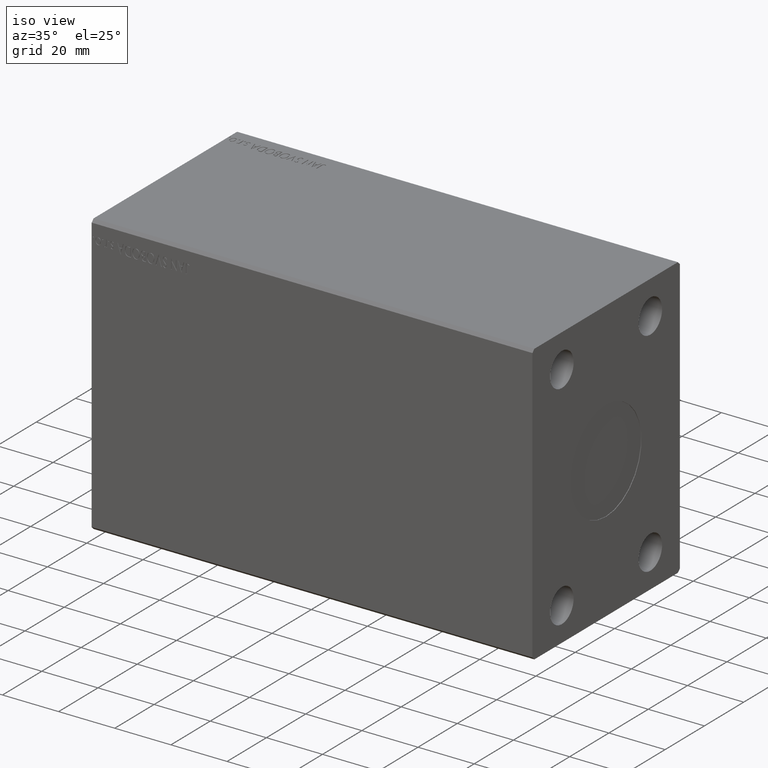
[diagram: clean part render]
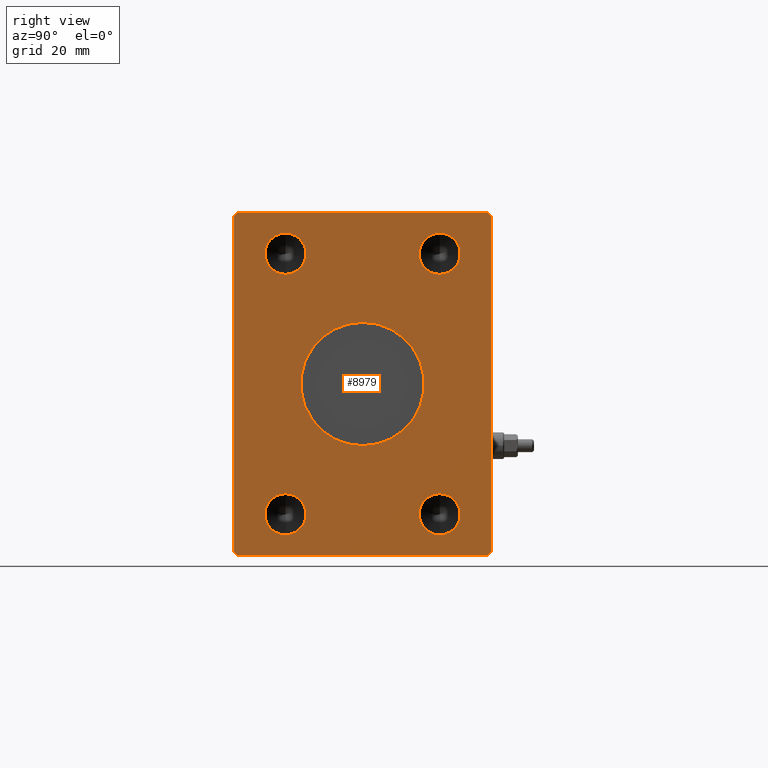
[diagram: tour spotlight — one face highlighted and labeled with its STEP entity id]
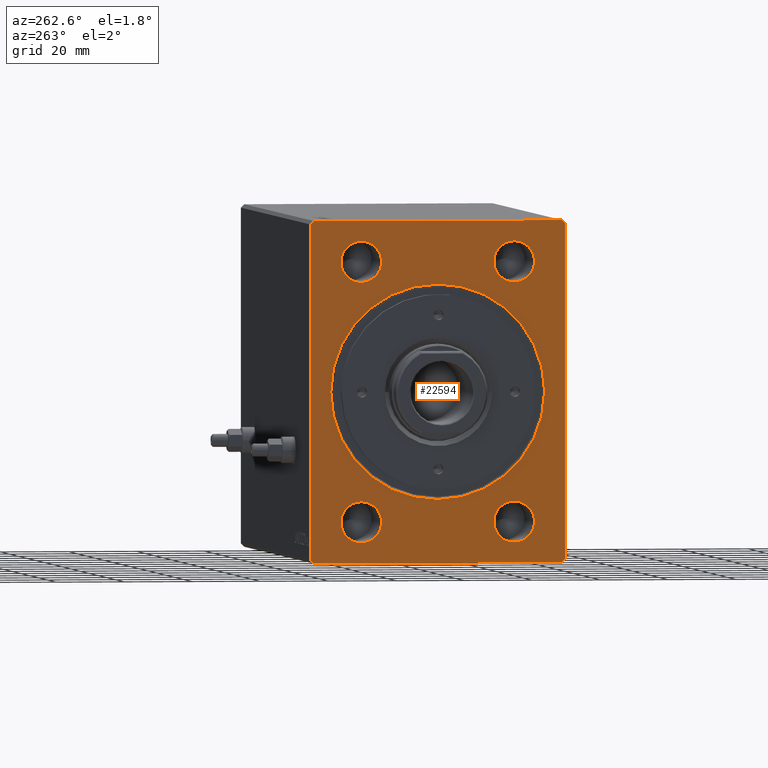
[diagram: tour spotlight — one face highlighted and labeled with its STEP entity id]
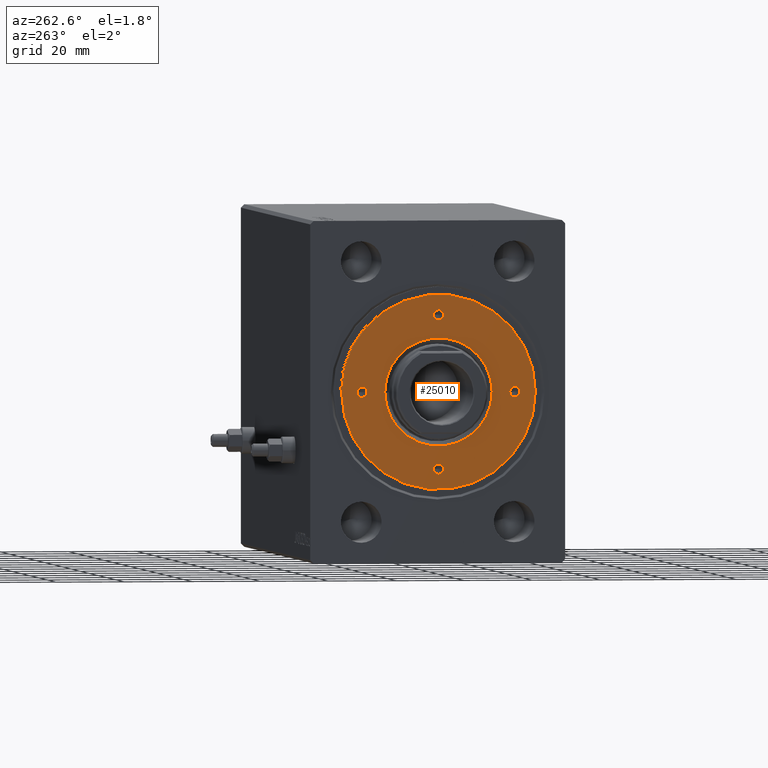
[diagram: tour spotlight — one face highlighted and labeled with its STEP entity id]
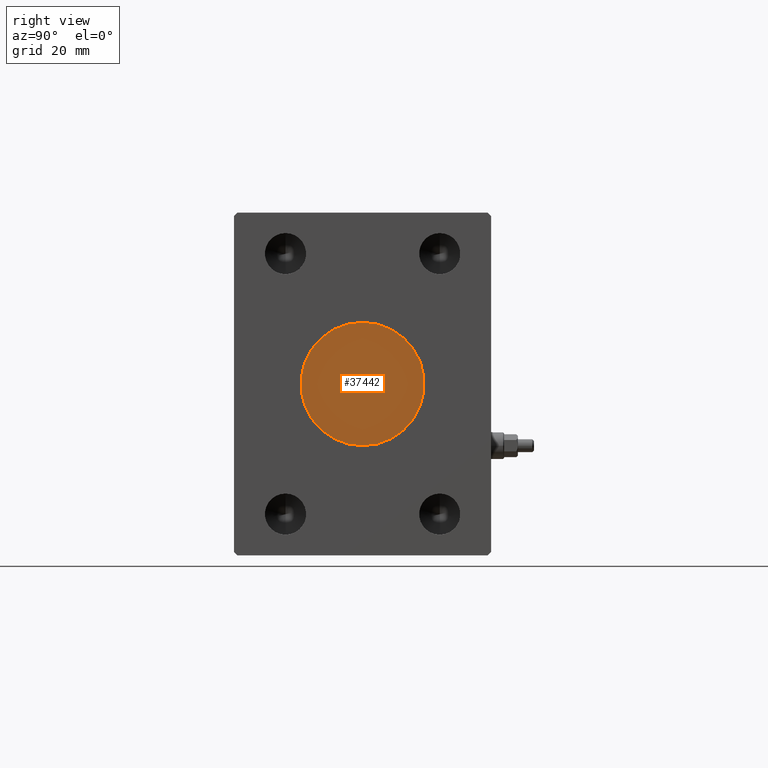
[diagram: tour spotlight — one face highlighted and labeled with its STEP entity id]
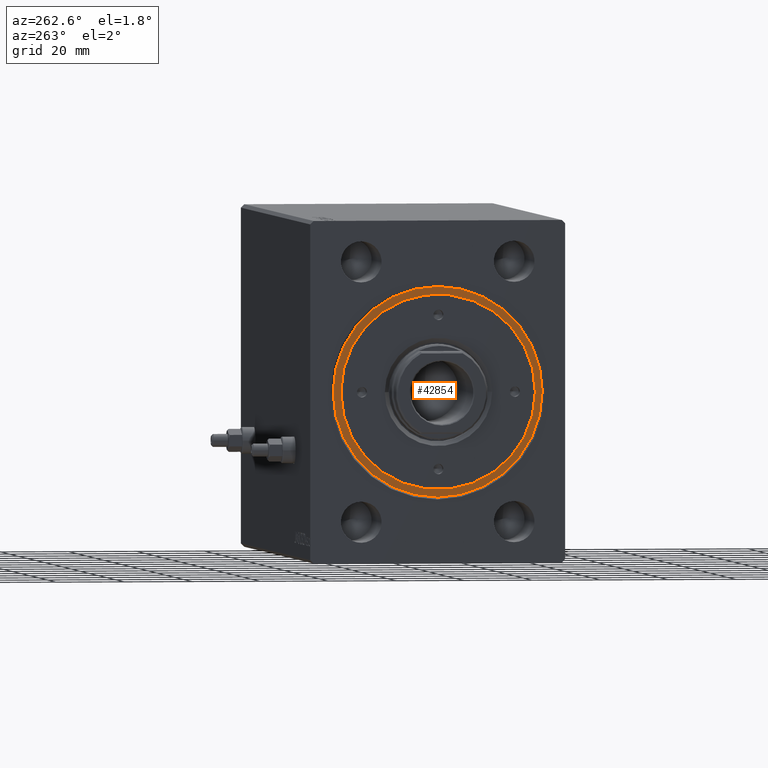
[diagram: tour spotlight — one face highlighted and labeled with its STEP entity id]
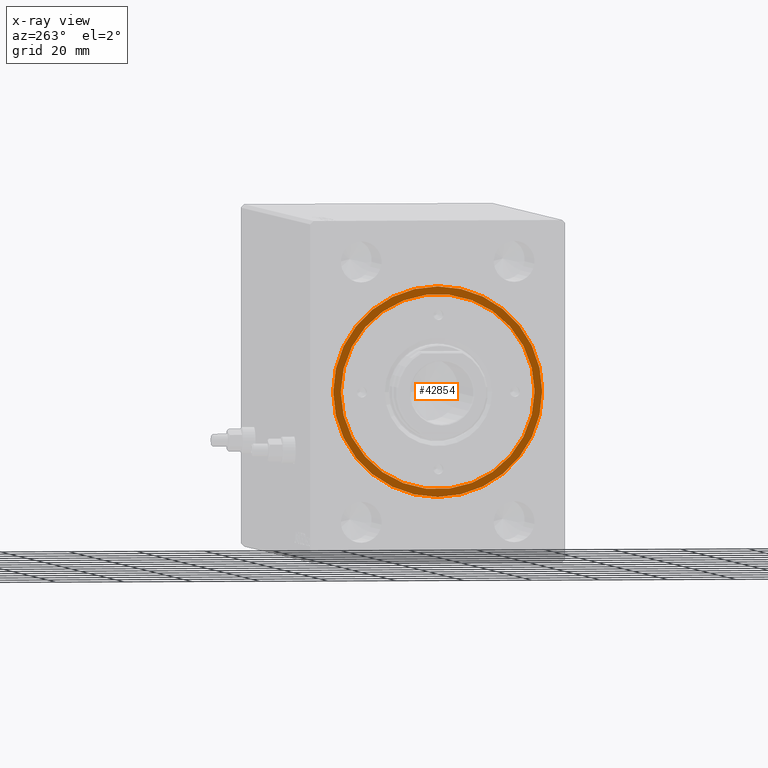
[diagram: x-ray of the same camera — body ghosted, this tour face saturated]
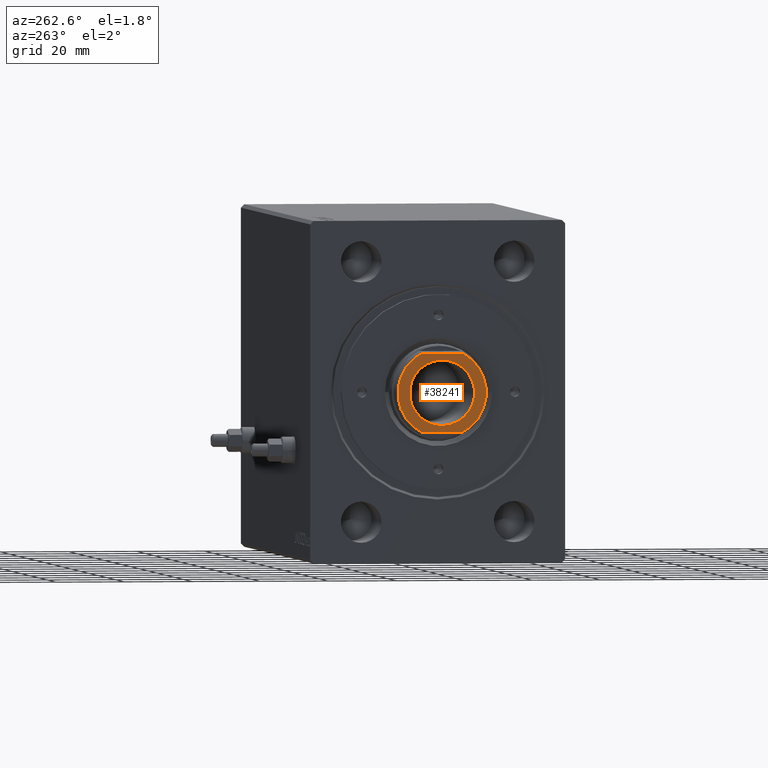
[diagram: tour spotlight — one face highlighted and labeled with its STEP entity id]
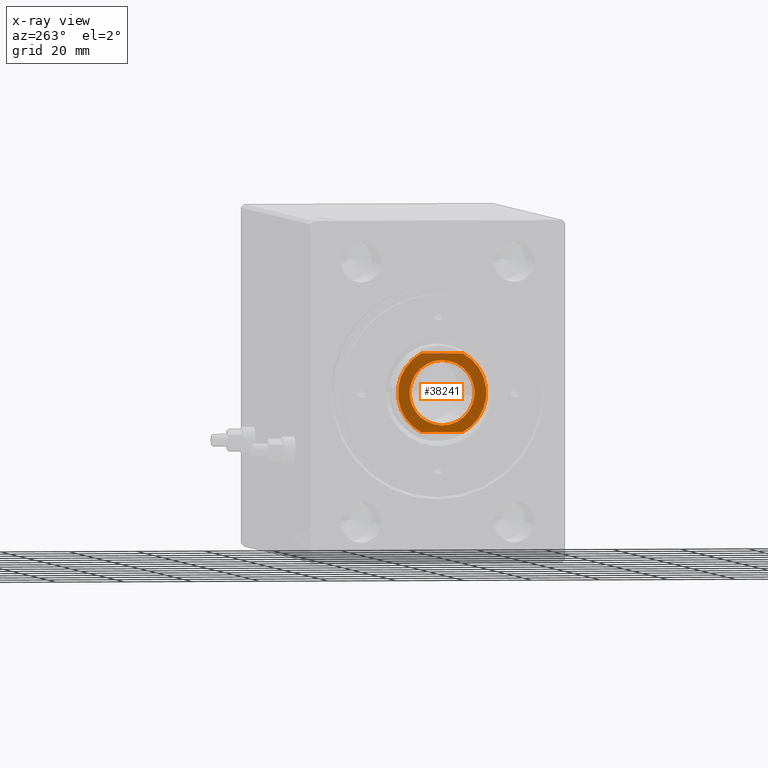
[diagram: x-ray of the same camera — body ghosted, this tour face saturated]
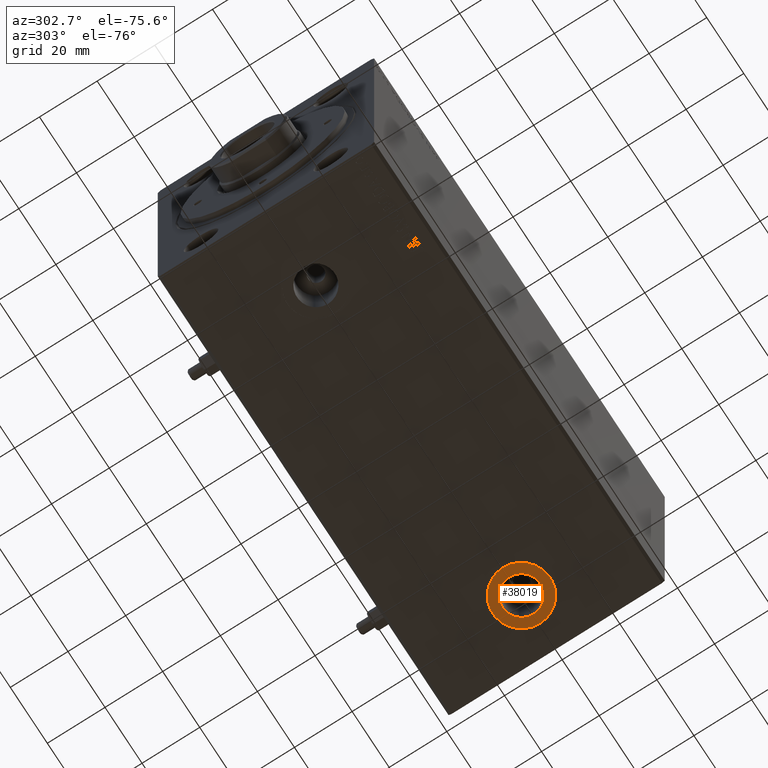
[diagram: tour spotlight — one face highlighted and labeled with its STEP entity id]
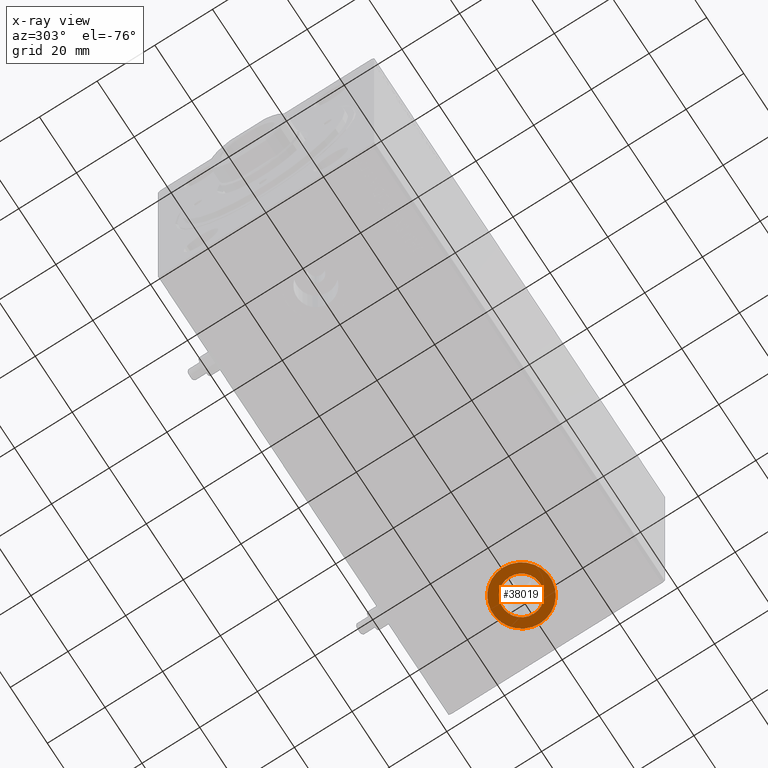
[diagram: x-ray of the same camera — body ghosted, this tour face saturated]
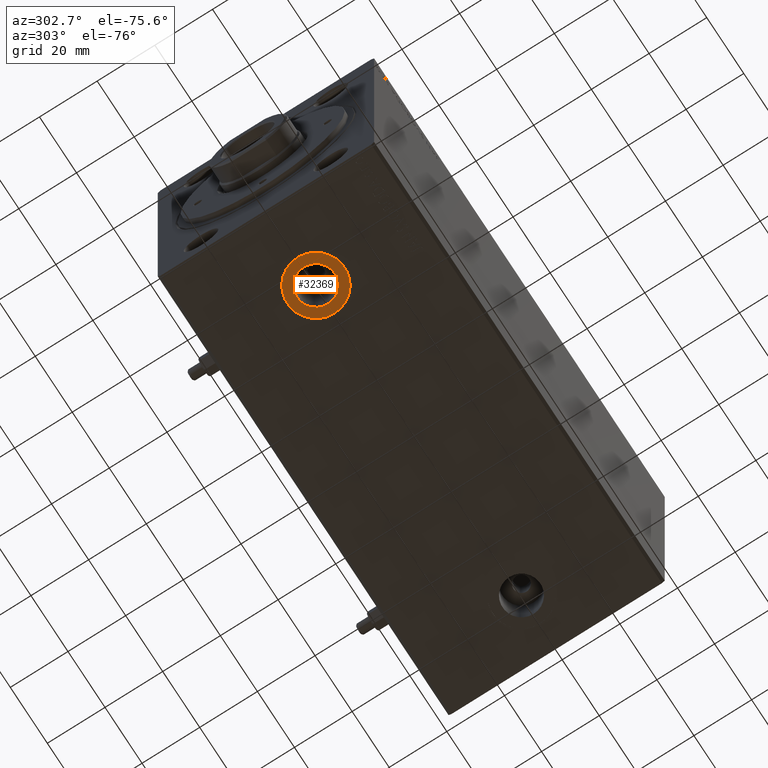
[diagram: tour spotlight — one face highlighted and labeled with its STEP entity id]
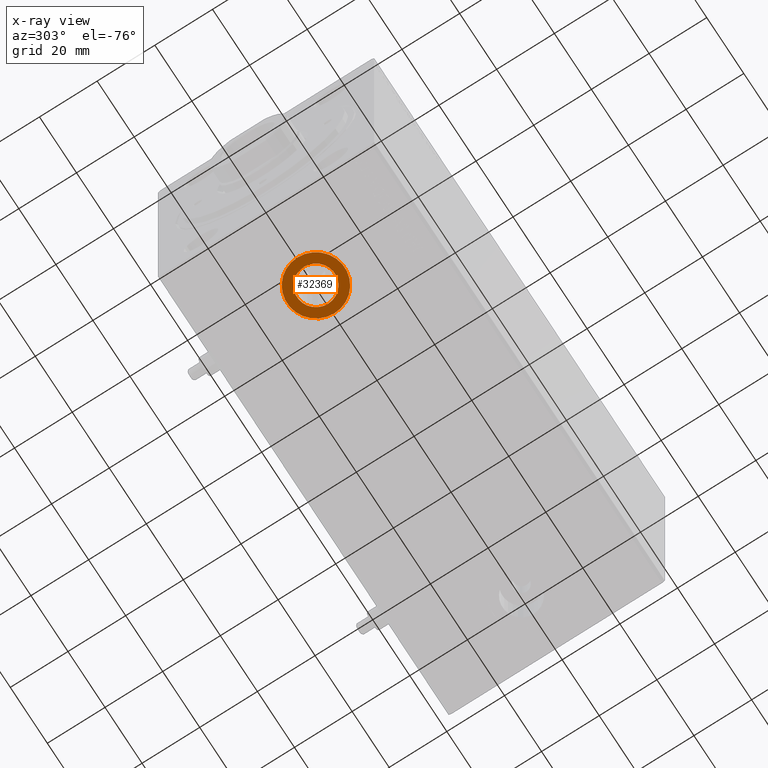
[diagram: x-ray of the same camera — body ghosted, this tour face saturated]
A machine part: a face-by-face anatomy tour. The part has 934 B-rep faces; the first image is the clean iso view, then the 8 largest visible faces are spotlighted one at a time (largest first), each with its STEP entity span.

Face 1 — right view, entity #8979. In plain terms, the highlighted planar face has unit normal (1, 0, 0).
Definition (entity closure, byte-faithful):
#641 = DIRECTION ( 'NONE',  ( 1.000000000000000000, -0.000000000000000000, -0.000000000000000000 ) ) ;
#1259 = EDGE_CURVE ( 'NONE', #16871, #7639, #5967, .T. ) ;
#1388 = VERTEX_POINT ( 'NONE', #20976 ) ;
#1579 = LINE ( 'NONE', #22756, #36505 ) ;
#1944 = AXIS2_PLACEMENT_3D ( 'NONE', #33253, #40536, #29393 ) ;
#2150 = CARTESIAN_POINT ( 'NONE',  ( 157.0000000000000000, 0.000000000000000000, 0.000000000000000000 ) ) ;
#2372 = EDGE_CURVE ( 'NONE', #17528, #43670, #23025, .T. ) ;
#2508 = EDGE_CURVE ( 'NONE', #17045, #24471, #3151, .T. ) ;
#2946 = ORIENTED_EDGE ( 'NONE', *, *, #11859, .F. ) ;
#2973 = ORIENTED_EDGE ( 'NONE', *, *, #18294, .T. ) ;
#3151 = LINE ( 'NONE', #9996, #22277 ) ;
#3339 = VERTEX_POINT ( 'NONE', #12356 ) ;
#3365 = FACE_BOUND ( 'NONE', #37348, .T. ) ;
#3567 = AXIS2_PLACEMENT_3D ( 'NONE', #19904, #33791, #29486 ) ;
#3764 = CARTESIAN_POINT ( 'NONE',  ( 157.0000000000000000, 37.50000000000000711, 49.00000000000000000 ) ) ;
#4450 = EDGE_CURVE ( 'NONE', #42933, #3339, #30017, .T. ) ;
#4954 = ORIENTED_EDGE ( 'NONE', *, *, #36670, .T. ) ;
#5314 = CIRCLE ( 'NONE', #41687, 5.999999999999998224 ) ;
#5369 = DIRECTION ( 'NONE',  ( 0.000000000000000000, 0.000000000000000000, -1.000000000000000000 ) ) ;
#5967 = LINE ( 'NONE', #36703, #13954 ) ;
#6045 = VERTEX_POINT ( 'NONE', #10583 ) ;
#7100 = ORIENTED_EDGE ( 'NONE', *, *, #18542, .F. ) ;
#7639 = VERTEX_POINT ( 'NONE', #27628 ) ;
#8052 = CIRCLE ( 'NONE', #44388, 18.00000000000000000 ) ;
#8422 = VERTEX_POINT ( 'NONE', #33999 ) ;
#8691 = CARTESIAN_POINT ( 'NONE',  ( 157.0000000000000000, 37.50000000000000711, 49.00000000000000000 ) ) ;
#8888 = EDGE_CURVE ( 'NONE', #7639, #39931, #1579, .T. ) ;
#8960 = CARTESIAN_POINT ( 'NONE',  ( 157.0000000000000000, -22.50000000000000000, -44.00000000000000711 ) ) ;
#8979 = ADVANCED_FACE ( 'NONE', ( #30261, #44155, #3365, #40737, #13619, #27296 ), #33896, .T. ) ;
#9059 = DIRECTION ( 'NONE',  ( 1.000000000000000000, -0.000000000000000000, -0.000000000000000000 ) ) ;
#9627 = DIRECTION ( 'NONE',  ( 0.000000000000000000, 0.000000000000000000, -1.000000000000000000 ) ) ;
#9754 = DIRECTION ( 'NONE',  ( 0.000000000000000000, 0.000000000000000000, -1.000000000000000000 ) ) ;
#9902 = CARTESIAN_POINT ( 'NONE',  ( 157.0000000000000000, 0.000000000000000000, 0.000000000000000000 ) ) ;
#9925 = DIRECTION ( 'NONE',  ( 0.000000000000000000, -0.7071067811865474617, 0.7071067811865474617 ) ) ;
#9996 = CARTESIAN_POINT ( 'NONE',  ( 157.0000000000000000, -37.50000000000001421, -49.00000000000000000 ) ) ;
#10583 = CARTESIAN_POINT ( 'NONE',  ( 157.0000000000000000, 22.50000000000000000, -44.00000000000000000 ) ) ;
#10819 = ORIENTED_EDGE ( 'NONE', *, *, #12623, .F. ) ;
#11859 = EDGE_CURVE ( 'NONE', #3339, #42933, #13421, .T. ) ;
#11875 = VECTOR ( 'NONE', #5369, 1000.000000000000000 ) ;
#12116 = DIRECTION ( 'NONE',  ( 0.000000000000000000, -1.000000000000000000, -1.901066822988281457E-16 ) ) ;
#12283 = ORIENTED_EDGE ( 'NONE', *, *, #4450, .F. ) ;
#12356 = CARTESIAN_POINT ( 'NONE',  ( 157.0000000000000000, -22.50000000000000000, -32.00000000000000711 ) ) ;
#12432 = EDGE_CURVE ( 'NONE', #43670, #17528, #35390, .T. ) ;
#12623 = EDGE_CURVE ( 'NONE', #18118, #32468, #34682, .T. ) ;
#13222 = AXIS2_PLACEMENT_3D ( 'NONE', #41172, #20016, #9754 ) ;
#13291 = LINE ( 'NONE', #44726, #42270 ) ;
#13421 = CIRCLE ( 'NONE', #21429, 5.999999999999998224 ) ;
#13577 = AXIS2_PLACEMENT_3D ( 'NONE', #43226, #9059, #22501 ) ;
#13619 = FACE_BOUND ( 'NONE', #36396, .T. ) ;
#13675 = ORIENTED_EDGE ( 'NONE', *, *, #21057, .F. ) ;
#13827 = CARTESIAN_POINT ( 'NONE',  ( 157.0000000000000000, 22.50000000000000000, 32.00000000000000000 ) ) ;
#13954 = VECTOR ( 'NONE', #12116, 1000.000000000000000 ) ;
#14584 = ORIENTED_EDGE ( 'NONE', *, *, #2372, .F. ) ;
#15517 = DIRECTION ( 'NONE',  ( 1.000000000000000000, -0.000000000000000000, -0.000000000000000000 ) ) ;
#15850 = LINE ( 'NONE', #30178, #11875 ) ;
#15970 = VECTOR ( 'NONE', #32756, 1000.000000000000000 ) ;
#15972 = ORIENTED_EDGE ( 'NONE', *, *, #2508, .T. ) ;
#16051 = DIRECTION ( 'NONE',  ( 1.000000000000000000, 0.000000000000000000, 0.000000000000000000 ) ) ;
#16143 = CARTESIAN_POINT ( 'NONE',  ( 157.0000000000000000, -22.50000000000000000, 44.00000000000000000 ) ) ;
#16295 = LINE ( 'NONE', #40438, #21121 ) ;
#16345 = AXIS2_PLACEMENT_3D ( 'NONE', #2150, #16051, #23314 ) ;
#16871 = VERTEX_POINT ( 'NONE', #17521 ) ;
#17045 = VERTEX_POINT ( 'NONE', #39363 ) ;
#17420 = EDGE_CURVE ( 'NONE', #39931, #17045, #15850, .T. ) ;
#17521 = CARTESIAN_POINT ( 'NONE',  ( 157.0000000000000000, 36.50000000000000711, 50.00000000000000000 ) ) ;
#17528 = VERTEX_POINT ( 'NONE', #34256 ) ;
#17660 = CARTESIAN_POINT ( 'NONE',  ( 157.0000000000000000, 36.50000000000000711, -50.00000000000000000 ) ) ;
#17974 = CARTESIAN_POINT ( 'NONE',  ( 157.0000000000000000, -22.50000000000000000, -38.00000000000000711 ) ) ;
#18118 = VERTEX_POINT ( 'NONE', #18455 ) ;
#18294 = EDGE_CURVE ( 'NONE', #30273, #16871, #41798, .T. ) ;
#18455 = CARTESIAN_POINT ( 'NONE',  ( 157.0000000000000000, 22.50000000000000000, 44.00000000000000000 ) ) ;
#18542 = EDGE_CURVE ( 'NONE', #1388, #32747, #35972, .T. ) ;
#18872 = CARTESIAN_POINT ( 'NONE',  ( 157.0000000000000000, -36.50000000000000711, -50.00000000000000000 ) ) ;
#19121 = VERTEX_POINT ( 'NONE', #36879 ) ;
#19363 = DIRECTION ( 'NONE',  ( 0.000000000000000000, 0.000000000000000000, -1.000000000000000000 ) ) ;
#19393 = AXIS2_PLACEMENT_3D ( 'NONE', #26653, #40529, #19363 ) ;
#19785 = DIRECTION ( 'NONE',  ( 1.000000000000000000, -0.000000000000000000, -0.000000000000000000 ) ) ;
#19904 = CARTESIAN_POINT ( 'NONE',  ( 157.0000000000000000, 22.50000000000000000, -38.00000000000000000 ) ) ;
#20016 = DIRECTION ( 'NONE',  ( 1.000000000000000000, 0.000000000000000000, 0.000000000000000000 ) ) ;
#20348 = ORIENTED_EDGE ( 'NONE', *, *, #17420, .T. ) ;
#20976 = CARTESIAN_POINT ( 'NONE',  ( 157.0000000000000000, 0.000000000000000000, -18.00000000000000000 ) ) ;
#21057 = EDGE_CURVE ( 'NONE', #6045, #19121, #36301, .T. ) ;
#21121 = VECTOR ( 'NONE', #39994, 1000.000000000000114 ) ;
#21277 = CARTESIAN_POINT ( 'NONE',  ( 157.0000000000000000, 2.204364238465235428E-15, 18.00000000000000000 ) ) ;
#21429 = AXIS2_PLACEMENT_3D ( 'NONE', #33712, #15517, #37129 ) ;
#22277 = VECTOR ( 'NONE', #33909, 1000.000000000000114 ) ;
#22501 = DIRECTION ( 'NONE',  ( 0.000000000000000000, 0.000000000000000000, -1.000000000000000000 ) ) ;
#22669 = CIRCLE ( 'NONE', #27785, 5.999999999999998224 ) ;
#22756 = CARTESIAN_POINT ( 'NONE',  ( 157.0000000000000000, -36.50000000000001421, 49.99999999999998579 ) ) ;
#22902 = CARTESIAN_POINT ( 'NONE',  ( 157.0000000000000000, -36.50000000000000711, -50.00000000000000000 ) ) ;
#23025 = CIRCLE ( 'NONE', #19393, 5.999999999999998224 ) ;
#23189 = CARTESIAN_POINT ( 'NONE',  ( 157.0000000000000000, 22.50000000000000000, 38.00000000000000000 ) ) ;
#23314 = DIRECTION ( 'NONE',  ( 0.000000000000000000, 0.000000000000000000, -1.000000000000000000 ) ) ;
#23355 = EDGE_CURVE ( 'NONE', #24471, #28217, #31848, .T. ) ;
#23529 = VECTOR ( 'NONE', #9925, 1000.000000000000114 ) ;
#23835 = CARTESIAN_POINT ( 'NONE',  ( 157.0000000000000000, -37.50000000000001421, 48.99999999999998579 ) ) ;
#24471 = VERTEX_POINT ( 'NONE', #22902 ) ;
#24473 = EDGE_CURVE ( 'NONE', #28217, #8422, #16295, .T. ) ;
#24549 = EDGE_CURVE ( 'NONE', #32747, #1388, #8052, .T. ) ;
#26469 = ORIENTED_EDGE ( 'NONE', *, *, #37198, .F. ) ;
#26653 = CARTESIAN_POINT ( 'NONE',  ( 157.0000000000000000, -22.50000000000000000, 38.00000000000000000 ) ) ;
#26832 = ORIENTED_EDGE ( 'NONE', *, *, #24473, .T. ) ;
#27296 = FACE_OUTER_BOUND ( 'NONE', #36903, .T. ) ;
#27628 = CARTESIAN_POINT ( 'NONE',  ( 157.0000000000000000, -36.50000000000001421, 49.99999999999998579 ) ) ;
#27785 = AXIS2_PLACEMENT_3D ( 'NONE', #23189, #19785, #40292 ) ;
#27897 = DIRECTION ( 'NONE',  ( 1.000000000000000000, 0.000000000000000000, 0.000000000000000000 ) ) ;
#28217 = VERTEX_POINT ( 'NONE', #17660 ) ;
#28668 = DIRECTION ( 'NONE',  ( 0.000000000000000000, 0.000000000000000000, -1.000000000000000000 ) ) ;
#29272 = EDGE_LOOP ( 'NONE', ( #13675, #29933 ) ) ;
#29393 = DIRECTION ( 'NONE',  ( 0.000000000000000000, 0.000000000000000000, -1.000000000000000000 ) ) ;
#29486 = DIRECTION ( 'NONE',  ( 0.000000000000000000, 0.000000000000000000, -1.000000000000000000 ) ) ;
#29708 = EDGE_LOOP ( 'NONE', ( #26469, #10819 ) ) ;
#29933 = ORIENTED_EDGE ( 'NONE', *, *, #41241, .F. ) ;
#30017 = CIRCLE ( 'NONE', #30728, 5.999999999999998224 ) ;
#30178 = CARTESIAN_POINT ( 'NONE',  ( 157.0000000000000000, -37.50000000000001421, 48.99999999999998579 ) ) ;
#30261 = FACE_BOUND ( 'NONE', #34870, .T. ) ;
#30273 = VERTEX_POINT ( 'NONE', #8691 ) ;
#30728 = AXIS2_PLACEMENT_3D ( 'NONE', #17974, #641, #28668 ) ;
#31848 = LINE ( 'NONE', #18872, #15970 ) ;
#32468 = VERTEX_POINT ( 'NONE', #13827 ) ;
#32747 = VERTEX_POINT ( 'NONE', #21277 ) ;
#32749 = ORIENTED_EDGE ( 'NONE', *, *, #12432, .F. ) ;
#32756 = DIRECTION ( 'NONE',  ( 0.000000000000000000, 1.000000000000000000, 0.000000000000000000 ) ) ;
#33253 = CARTESIAN_POINT ( 'NONE',  ( 157.0000000000000000, -22.50000000000000000, 38.00000000000000000 ) ) ;
#33556 = DIRECTION ( 'NONE',  ( 1.000000000000000000, -0.000000000000000000, -0.000000000000000000 ) ) ;
#33712 = CARTESIAN_POINT ( 'NONE',  ( 157.0000000000000000, -22.50000000000000000, -38.00000000000000711 ) ) ;
#33791 = DIRECTION ( 'NONE',  ( 1.000000000000000000, -0.000000000000000000, -0.000000000000000000 ) ) ;
#33896 = PLANE ( 'NONE',  #13222 ) ;
#33909 = DIRECTION ( 'NONE',  ( 0.000000000000000000, 0.7071067811865500152, -0.7071067811865451302 ) ) ;
#33999 = CARTESIAN_POINT ( 'NONE',  ( 157.0000000000000000, 37.50000000000000711, -49.00000000000000000 ) ) ;
#34256 = CARTESIAN_POINT ( 'NONE',  ( 157.0000000000000000, -22.50000000000000000, 32.00000000000000000 ) ) ;
#34682 = CIRCLE ( 'NONE', #13577, 5.999999999999998224 ) ;
#34870 = EDGE_LOOP ( 'NONE', ( #7100, #38662 ) ) ;
#34921 = DIRECTION ( 'NONE',  ( 0.000000000000000000, 0.000000000000000000, 1.000000000000000000 ) ) ;
#35390 = CIRCLE ( 'NONE', #1944, 5.999999999999998224 ) ;
#35972 = CIRCLE ( 'NONE', #16345, 18.00000000000000000 ) ;
#36008 = ORIENTED_EDGE ( 'NONE', *, *, #8888, .T. ) ;
#36301 = CIRCLE ( 'NONE', #3567, 5.999999999999998224 ) ;
#36396 = EDGE_LOOP ( 'NONE', ( #14584, #32749 ) ) ;
#36505 = VECTOR ( 'NONE', #43035, 1000.000000000000114 ) ;
#36670 = EDGE_CURVE ( 'NONE', #8422, #30273, #13291, .T. ) ;
#36703 = CARTESIAN_POINT ( 'NONE',  ( 157.0000000000000000, 36.50000000000000711, 50.00000000000000000 ) ) ;
#36812 = ORIENTED_EDGE ( 'NONE', *, *, #1259, .T. ) ;
#36879 = CARTESIAN_POINT ( 'NONE',  ( 157.0000000000000000, 22.50000000000000000, -32.00000000000000000 ) ) ;
#36903 = EDGE_LOOP ( 'NONE', ( #2973, #36812, #36008, #20348, #15972, #42636, #26832, #4954 ) ) ;
#37129 = DIRECTION ( 'NONE',  ( 0.000000000000000000, 0.000000000000000000, -1.000000000000000000 ) ) ;
#37198 = EDGE_CURVE ( 'NONE', #32468, #18118, #22669, .T. ) ;
#37348 = EDGE_LOOP ( 'NONE', ( #12283, #2946 ) ) ;
#38662 = ORIENTED_EDGE ( 'NONE', *, *, #24549, .F. ) ;
#39363 = CARTESIAN_POINT ( 'NONE',  ( 157.0000000000000000, -37.50000000000001421, -49.00000000000000000 ) ) ;
#39931 = VERTEX_POINT ( 'NONE', #23835 ) ;
#39994 = DIRECTION ( 'NONE',  ( 0.000000000000000000, 0.7071067811865474617, 0.7071067811865474617 ) ) ;
#40292 = DIRECTION ( 'NONE',  ( 0.000000000000000000, 0.000000000000000000, -1.000000000000000000 ) ) ;
#40438 = CARTESIAN_POINT ( 'NONE',  ( 157.0000000000000000, 36.50000000000000711, -50.00000000000000000 ) ) ;
#40529 = DIRECTION ( 'NONE',  ( 1.000000000000000000, -0.000000000000000000, -0.000000000000000000 ) ) ;
#40536 = DIRECTION ( 'NONE',  ( 1.000000000000000000, -0.000000000000000000, -0.000000000000000000 ) ) ;
#40737 = FACE_BOUND ( 'NONE', #29272, .T. ) ;
#41099 = DIRECTION ( 'NONE',  ( 0.000000000000000000, 0.000000000000000000, -1.000000000000000000 ) ) ;
#41172 = CARTESIAN_POINT ( 'NONE',  ( 157.0000000000000000, 0.000000000000000000, 0.000000000000000000 ) ) ;
#41241 = EDGE_CURVE ( 'NONE', #19121, #6045, #5314, .T. ) ;
#41687 = AXIS2_PLACEMENT_3D ( 'NONE', #44030, #33556, #9627 ) ;
#41798 = LINE ( 'NONE', #3764, #23529 ) ;
#42270 = VECTOR ( 'NONE', #34921, 1000.000000000000000 ) ;
#42636 = ORIENTED_EDGE ( 'NONE', *, *, #23355, .T. ) ;
#42933 = VERTEX_POINT ( 'NONE', #8960 ) ;
#43035 = DIRECTION ( 'NONE',  ( 0.000000000000000000, -0.7071067811865474617, -0.7071067811865474617 ) ) ;
#43226 = CARTESIAN_POINT ( 'NONE',  ( 157.0000000000000000, 22.50000000000000000, 38.00000000000000000 ) ) ;
#43670 = VERTEX_POINT ( 'NONE', #16143 ) ;
#44030 = CARTESIAN_POINT ( 'NONE',  ( 157.0000000000000000, 22.50000000000000000, -38.00000000000000000 ) ) ;
#44155 = FACE_BOUND ( 'NONE', #29708, .T. ) ;
#44388 = AXIS2_PLACEMENT_3D ( 'NONE', #9902, #27897, #41099 ) ;
#44726 = CARTESIAN_POINT ( 'NONE',  ( 157.0000000000000000, 37.50000000000000711, -49.00000000000000000 ) ) ;

Face 2 — auxiliary view, entity #22594. In plain terms, the highlighted planar face has unit normal (1, 0, 0).
Definition (entity closure, byte-faithful):
#185 = EDGE_LOOP ( 'NONE', ( #7931, #39763 ) ) ;
#344 = FACE_BOUND ( 'NONE', #27824, .T. ) ;
#346 = VECTOR ( 'NONE', #42549, 1000.000000000000000 ) ;
#391 = CARTESIAN_POINT ( 'NONE',  ( 2.449293598294703949E-16, 22.50000000000000000, 38.00000000000000000 ) ) ;
#525 = CARTESIAN_POINT ( 'NONE',  ( 2.449293598294703949E-16, 22.50000000000000000, -44.00000000000000000 ) ) ;
#1028 = FACE_BOUND ( 'NONE', #12343, .T. ) ;
#1043 = VERTEX_POINT ( 'NONE', #34507 ) ;
#1956 = DIRECTION ( 'NONE',  ( -1.000000000000000000, -0.000000000000000000, -0.000000000000000000 ) ) ;
#2302 = VERTEX_POINT ( 'NONE', #30054 ) ;
#2710 = EDGE_LOOP ( 'NONE', ( #22974, #23594, #19903, #3166, #43635, #21597, #18951, #21991 ) ) ;
#3093 = EDGE_CURVE ( 'NONE', #42084, #16987, #40204, .T. ) ;
#3140 = EDGE_CURVE ( 'NONE', #44627, #33477, #30307, .T. ) ;
#3166 = ORIENTED_EDGE ( 'NONE', *, *, #11742, .F. ) ;
#3282 = DIRECTION ( 'NONE',  ( 0.000000000000000000, 0.000000000000000000, 1.000000000000000000 ) ) ;
#3582 = CARTESIAN_POINT ( 'NONE',  ( 2.449293598294703949E-16, -22.50000000000000000, -32.00000000000000711 ) ) ;
#3629 = ORIENTED_EDGE ( 'NONE', *, *, #33590, .F. ) ;
#4130 = EDGE_LOOP ( 'NONE', ( #3629, #15241 ) ) ;
#4227 = FACE_OUTER_BOUND ( 'NONE', #2710, .T. ) ;
#4301 = CARTESIAN_POINT ( 'NONE',  ( 2.449293598294703949E-16, 22.50000000000000000, -32.00000000000000000 ) ) ;
#4405 = CIRCLE ( 'NONE', #37145, 5.999999999999998224 ) ;
#4616 = EDGE_CURVE ( 'NONE', #14591, #7774, #24940, .T. ) ;
#4710 = EDGE_CURVE ( 'NONE', #33477, #44627, #25670, .T. ) ;
#5150 = CARTESIAN_POINT ( 'NONE',  ( 2.449293598294703949E-16, 22.50000000000000000, 38.00000000000000000 ) ) ;
#5263 = ORIENTED_EDGE ( 'NONE', *, *, #40502, .F. ) ;
#5274 = CARTESIAN_POINT ( 'NONE',  ( 0.000000000000000000, 36.50000000000000711, 50.00000000000000000 ) ) ;
#5282 = CIRCLE ( 'NONE', #12550, 5.999999999999998224 ) ;
#5384 = DIRECTION ( 'NONE',  ( -1.000000000000000000, -0.000000000000000000, -0.000000000000000000 ) ) ;
#5431 = DIRECTION ( 'NONE',  ( -1.000000000000000000, -0.000000000000000000, -0.000000000000000000 ) ) ;
#5504 = DIRECTION ( 'NONE',  ( 0.000000000000000000, 0.000000000000000000, -1.000000000000000000 ) ) ;
#6399 = VERTEX_POINT ( 'NONE', #5274 ) ;
#6510 = CARTESIAN_POINT ( 'NONE',  ( 0.000000000000000000, 3.851514183318426405E-15, -31.45000000000000639 ) ) ;
#6600 = CARTESIAN_POINT ( 'NONE',  ( 0.000000000000000000, 36.50000000000000711, -50.00000000000000000 ) ) ;
#6890 = CIRCLE ( 'NONE', #33084, 5.999999999999998224 ) ;
#7058 = VECTOR ( 'NONE', #24126, 1000.000000000000114 ) ;
#7366 = VECTOR ( 'NONE', #34636, 1000.000000000000114 ) ;
#7761 = CARTESIAN_POINT ( 'NONE',  ( 0.000000000000000000, 37.50000000000000711, 49.00000000000000000 ) ) ;
#7774 = VERTEX_POINT ( 'NONE', #28964 ) ;
#7931 = ORIENTED_EDGE ( 'NONE', *, *, #4710, .F. ) ;
#8235 = VERTEX_POINT ( 'NONE', #6510 ) ;
#8709 = EDGE_CURVE ( 'NONE', #8235, #12783, #29236, .T. ) ;
#9169 = VECTOR ( 'NONE', #21653, 1000.000000000000114 ) ;
#9397 = AXIS2_PLACEMENT_3D ( 'NONE', #20682, #37989, #34567 ) ;
#10007 = LINE ( 'NONE', #6600, #7058 ) ;
#10048 = EDGE_CURVE ( 'NONE', #37690, #6399, #38960, .T. ) ;
#10288 = CARTESIAN_POINT ( 'NONE',  ( 2.449293598294703949E-16, 22.50000000000000000, 32.00000000000000000 ) ) ;
#10827 = FACE_BOUND ( 'NONE', #4130, .T. ) ;
#10842 = AXIS2_PLACEMENT_3D ( 'NONE', #35198, #24735, #31343 ) ;
#11129 = ORIENTED_EDGE ( 'NONE', *, *, #34411, .T. ) ;
#11353 = CARTESIAN_POINT ( 'NONE',  ( 0.000000000000000000, -37.50000000000001421, -49.00000000000000000 ) ) ;
#11742 = EDGE_CURVE ( 'NONE', #15952, #31763, #38537, .T. ) ;
#11810 = CARTESIAN_POINT ( 'NONE',  ( 2.449293598294703949E-16, -22.50000000000000000, 38.00000000000000000 ) ) ;
#11961 = CARTESIAN_POINT ( 'NONE',  ( 0.000000000000000000, -37.50000000000001421, 48.99999999999998579 ) ) ;
#12343 = EDGE_LOOP ( 'NONE', ( #19036, #40797 ) ) ;
#12550 = AXIS2_PLACEMENT_3D ( 'NONE', #17808, #39428, #42841 ) ;
#12783 = VERTEX_POINT ( 'NONE', #38417 ) ;
#13097 = CARTESIAN_POINT ( 'NONE',  ( 2.449293598294703949E-16, -22.50000000000000000, 32.00000000000000000 ) ) ;
#13173 = EDGE_CURVE ( 'NONE', #31763, #1043, #10007, .T. ) ;
#13296 = CARTESIAN_POINT ( 'NONE',  ( 2.449293598294703949E-16, -22.50000000000000000, -38.00000000000000711 ) ) ;
#14591 = VERTEX_POINT ( 'NONE', #13097 ) ;
#14898 = VECTOR ( 'NONE', #44917, 1000.000000000000000 ) ;
#15045 = CARTESIAN_POINT ( 'NONE',  ( 2.449293598294703949E-16, 22.50000000000000000, 44.00000000000000000 ) ) ;
#15241 = ORIENTED_EDGE ( 'NONE', *, *, #19361, .F. ) ;
#15446 = CARTESIAN_POINT ( 'NONE',  ( 0.000000000000000000, -36.50000000000000711, -50.00000000000000000 ) ) ;
#15570 = VERTEX_POINT ( 'NONE', #15045 ) ;
#15666 = EDGE_CURVE ( 'NONE', #24112, #17677, #35993, .T. ) ;
#15899 = EDGE_CURVE ( 'NONE', #6399, #2302, #25014, .T. ) ;
#15952 = VERTEX_POINT ( 'NONE', #15446 ) ;
#16437 = CARTESIAN_POINT ( 'NONE',  ( 0.000000000000000000, -36.50000000000001421, 49.99999999999998579 ) ) ;
#16488 = AXIS2_PLACEMENT_3D ( 'NONE', #13296, #23767, #37226 ) ;
#16606 = DIRECTION ( 'NONE',  ( 0.000000000000000000, 0.000000000000000000, 1.000000000000000000 ) ) ;
#16987 = VERTEX_POINT ( 'NONE', #11353 ) ;
#17531 = EDGE_CURVE ( 'NONE', #1043, #37690, #23777, .T. ) ;
#17677 = VERTEX_POINT ( 'NONE', #525 ) ;
#17808 = CARTESIAN_POINT ( 'NONE',  ( 2.449293598294703949E-16, -22.50000000000000000, 38.00000000000000000 ) ) ;
#18553 = DIRECTION ( 'NONE',  ( 0.000000000000000000, 0.7071067811865500152, -0.7071067811865451302 ) ) ;
#18951 = ORIENTED_EDGE ( 'NONE', *, *, #36007, .F. ) ;
#19036 = ORIENTED_EDGE ( 'NONE', *, *, #15666, .F. ) ;
#19097 = DIRECTION ( 'NONE',  ( -1.000000000000000000, -0.000000000000000000, -0.000000000000000000 ) ) ;
#19327 = DIRECTION ( 'NONE',  ( 0.000000000000000000, 0.000000000000000000, 1.000000000000000000 ) ) ;
#19361 = EDGE_CURVE ( 'NONE', #42253, #15570, #6890, .T. ) ;
#19628 = CARTESIAN_POINT ( 'NONE',  ( 0.000000000000000000, 0.000000000000000000, 0.000000000000000000 ) ) ;
#19903 = ORIENTED_EDGE ( 'NONE', *, *, #13173, .F. ) ;
#20682 = CARTESIAN_POINT ( 'NONE',  ( 0.000000000000000000, 0.000000000000000000, 0.000000000000000000 ) ) ;
#20849 = CARTESIAN_POINT ( 'NONE',  ( 0.000000000000000000, 37.50000000000000711, 49.00000000000000000 ) ) ;
#21096 = FACE_BOUND ( 'NONE', #185, .T. ) ;
#21597 = ORIENTED_EDGE ( 'NONE', *, *, #3093, .F. ) ;
#21653 = DIRECTION ( 'NONE',  ( 0.000000000000000000, -0.7071067811865474617, 0.7071067811865474617 ) ) ;
#21822 = CARTESIAN_POINT ( 'NONE',  ( 0.000000000000000000, 36.50000000000000711, 50.00000000000000000 ) ) ;
#21991 = ORIENTED_EDGE ( 'NONE', *, *, #15899, .F. ) ;
#22594 = ADVANCED_FACE ( 'NONE', ( #10827, #21096, #1028, #344, #28373, #4227 ), #25181, .F. ) ;
#22974 = ORIENTED_EDGE ( 'NONE', *, *, #10048, .F. ) ;
#23594 = ORIENTED_EDGE ( 'NONE', *, *, #17531, .F. ) ;
#23767 = DIRECTION ( 'NONE',  ( -1.000000000000000000, -0.000000000000000000, -0.000000000000000000 ) ) ;
#23777 = LINE ( 'NONE', #44507, #40228 ) ;
#23917 = VECTOR ( 'NONE', #18553, 1000.000000000000114 ) ;
#24112 = VERTEX_POINT ( 'NONE', #4301 ) ;
#24126 = DIRECTION ( 'NONE',  ( 0.000000000000000000, 0.7071067811865474617, 0.7071067811865474617 ) ) ;
#24565 = DIRECTION ( 'NONE',  ( 0.000000000000000000, 0.000000000000000000, 1.000000000000000000 ) ) ;
#24735 = DIRECTION ( 'NONE',  ( 1.000000000000000000, 0.000000000000000000, 0.000000000000000000 ) ) ;
#24940 = CIRCLE ( 'NONE', #30755, 5.999999999999998224 ) ;
#25014 = LINE ( 'NONE', #21822, #346 ) ;
#25181 = PLANE ( 'NONE',  #10842 ) ;
#25295 = EDGE_CURVE ( 'NONE', #17677, #24112, #4405, .T. ) ;
#25359 = CIRCLE ( 'NONE', #29747, 5.999999999999998224 ) ;
#25643 = DIRECTION ( 'NONE',  ( 0.000000000000000000, 0.000000000000000000, -1.000000000000000000 ) ) ;
#25670 = CIRCLE ( 'NONE', #31474, 5.999999999999998224 ) ;
#26152 = CIRCLE ( 'NONE', #9397, 31.45000000000000639 ) ;
#26206 = DIRECTION ( 'NONE',  ( -1.000000000000000000, -0.000000000000000000, -0.000000000000000000 ) ) ;
#26562 = DIRECTION ( 'NONE',  ( 0.000000000000000000, 0.000000000000000000, 1.000000000000000000 ) ) ;
#26813 = ORIENTED_EDGE ( 'NONE', *, *, #4616, .F. ) ;
#27824 = EDGE_LOOP ( 'NONE', ( #5263, #26813 ) ) ;
#28006 = AXIS2_PLACEMENT_3D ( 'NONE', #30056, #26206, #16606 ) ;
#28061 = EDGE_LOOP ( 'NONE', ( #11129, #31378 ) ) ;
#28373 = FACE_BOUND ( 'NONE', #28061, .T. ) ;
#28564 = CARTESIAN_POINT ( 'NONE',  ( 0.000000000000000000, -37.50000000000001421, -49.00000000000000000 ) ) ;
#28964 = CARTESIAN_POINT ( 'NONE',  ( 2.449293598294703949E-16, -22.50000000000000000, 44.00000000000000000 ) ) ;
#29236 = CIRCLE ( 'NONE', #35042, 31.45000000000000639 ) ;
#29747 = AXIS2_PLACEMENT_3D ( 'NONE', #5150, #1956, #26562 ) ;
#30054 = CARTESIAN_POINT ( 'NONE',  ( 0.000000000000000000, -36.50000000000001421, 49.99999999999998579 ) ) ;
#30056 = CARTESIAN_POINT ( 'NONE',  ( 2.449293598294703949E-16, 22.50000000000000000, -38.00000000000000000 ) ) ;
#30307 = CIRCLE ( 'NONE', #16488, 5.999999999999998224 ) ;
#30755 = AXIS2_PLACEMENT_3D ( 'NONE', #11810, #19097, #43913 ) ;
#31343 = DIRECTION ( 'NONE',  ( 0.000000000000000000, 0.000000000000000000, -1.000000000000000000 ) ) ;
#31378 = ORIENTED_EDGE ( 'NONE', *, *, #8709, .T. ) ;
#31474 = AXIS2_PLACEMENT_3D ( 'NONE', #36621, #5431, #19327 ) ;
#31614 = DIRECTION ( 'NONE',  ( -1.000000000000000000, -0.000000000000000000, -0.000000000000000000 ) ) ;
#31763 = VERTEX_POINT ( 'NONE', #34310 ) ;
#33059 = DIRECTION ( 'NONE',  ( 1.000000000000000000, 0.000000000000000000, 0.000000000000000000 ) ) ;
#33084 = AXIS2_PLACEMENT_3D ( 'NONE', #391, #31614, #24565 ) ;
#33477 = VERTEX_POINT ( 'NONE', #3582 ) ;
#33590 = EDGE_CURVE ( 'NONE', #15570, #42253, #25359, .T. ) ;
#33613 = CARTESIAN_POINT ( 'NONE',  ( 2.449293598294703949E-16, 22.50000000000000000, -38.00000000000000000 ) ) ;
#33799 = EDGE_CURVE ( 'NONE', #16987, #15952, #42003, .T. ) ;
#33937 = VECTOR ( 'NONE', #25643, 1000.000000000000000 ) ;
#34310 = CARTESIAN_POINT ( 'NONE',  ( 0.000000000000000000, 36.50000000000000711, -50.00000000000000000 ) ) ;
#34411 = EDGE_CURVE ( 'NONE', #12783, #8235, #26152, .T. ) ;
#34507 = CARTESIAN_POINT ( 'NONE',  ( 0.000000000000000000, 37.50000000000000711, -49.00000000000000000 ) ) ;
#34567 = DIRECTION ( 'NONE',  ( 0.000000000000000000, 0.000000000000000000, -1.000000000000000000 ) ) ;
#34636 = DIRECTION ( 'NONE',  ( 0.000000000000000000, -0.7071067811865474617, -0.7071067811865474617 ) ) ;
#35042 = AXIS2_PLACEMENT_3D ( 'NONE', #19628, #33059, #5504 ) ;
#35198 = CARTESIAN_POINT ( 'NONE',  ( 0.000000000000000000, 0.000000000000000000, 0.000000000000000000 ) ) ;
#35993 = CIRCLE ( 'NONE', #28006, 5.999999999999998224 ) ;
#36007 = EDGE_CURVE ( 'NONE', #2302, #42084, #41018, .T. ) ;
#36621 = CARTESIAN_POINT ( 'NONE',  ( 2.449293598294703949E-16, -22.50000000000000000, -38.00000000000000711 ) ) ;
#36796 = DIRECTION ( 'NONE',  ( 0.000000000000000000, 0.000000000000000000, 1.000000000000000000 ) ) ;
#36887 = CARTESIAN_POINT ( 'NONE',  ( 2.449293598294703949E-16, -22.50000000000000000, -44.00000000000000711 ) ) ;
#37145 = AXIS2_PLACEMENT_3D ( 'NONE', #33613, #5384, #36796 ) ;
#37226 = DIRECTION ( 'NONE',  ( 0.000000000000000000, 0.000000000000000000, 1.000000000000000000 ) ) ;
#37231 = CARTESIAN_POINT ( 'NONE',  ( 0.000000000000000000, -37.50000000000001421, 48.99999999999998579 ) ) ;
#37690 = VERTEX_POINT ( 'NONE', #20849 ) ;
#37989 = DIRECTION ( 'NONE',  ( 1.000000000000000000, 0.000000000000000000, 0.000000000000000000 ) ) ;
#38417 = CARTESIAN_POINT ( 'NONE',  ( 0.000000000000000000, 0.000000000000000000, 31.45000000000000639 ) ) ;
#38537 = LINE ( 'NONE', #41497, #14898 ) ;
#38960 = LINE ( 'NONE', #7761, #9169 ) ;
#39428 = DIRECTION ( 'NONE',  ( -1.000000000000000000, -0.000000000000000000, -0.000000000000000000 ) ) ;
#39763 = ORIENTED_EDGE ( 'NONE', *, *, #3140, .F. ) ;
#40204 = LINE ( 'NONE', #11961, #33937 ) ;
#40228 = VECTOR ( 'NONE', #3282, 1000.000000000000000 ) ;
#40502 = EDGE_CURVE ( 'NONE', #7774, #14591, #5282, .T. ) ;
#40797 = ORIENTED_EDGE ( 'NONE', *, *, #25295, .F. ) ;
#41018 = LINE ( 'NONE', #16437, #7366 ) ;
#41497 = CARTESIAN_POINT ( 'NONE',  ( 0.000000000000000000, -36.50000000000000711, -50.00000000000000000 ) ) ;
#42003 = LINE ( 'NONE', #28564, #23917 ) ;
#42084 = VERTEX_POINT ( 'NONE', #37231 ) ;
#42253 = VERTEX_POINT ( 'NONE', #10288 ) ;
#42549 = DIRECTION ( 'NONE',  ( 0.000000000000000000, -1.000000000000000000, -1.901066822988281457E-16 ) ) ;
#42841 = DIRECTION ( 'NONE',  ( 0.000000000000000000, 0.000000000000000000, 1.000000000000000000 ) ) ;
#43635 = ORIENTED_EDGE ( 'NONE', *, *, #33799, .F. ) ;
#43913 = DIRECTION ( 'NONE',  ( 0.000000000000000000, 0.000000000000000000, 1.000000000000000000 ) ) ;
#44507 = CARTESIAN_POINT ( 'NONE',  ( 0.000000000000000000, 37.50000000000000711, -49.00000000000000000 ) ) ;
#44627 = VERTEX_POINT ( 'NONE', #36887 ) ;
#44917 = DIRECTION ( 'NONE',  ( 0.000000000000000000, 1.000000000000000000, 0.000000000000000000 ) ) ;

Face 3 — auxiliary view, entity #25010. In plain terms, the highlighted planar face has unit normal (-1, 0, 0).
Definition (entity closure, byte-faithful):
#611 = ORIENTED_EDGE ( 'NONE', *, *, #18599, .F. ) ;
#1258 = AXIS2_PLACEMENT_3D ( 'NONE', #40510, #16369, #8637 ) ;
#2223 = DIRECTION ( 'NONE',  ( -0.000000000000000000, -0.000000000000000000, 1.000000000000000000 ) ) ;
#2481 = EDGE_LOOP ( 'NONE', ( #10448, #26218 ) ) ;
#2674 = FACE_BOUND ( 'NONE', #15757, .T. ) ;
#3020 = EDGE_LOOP ( 'NONE', ( #4782, #26090 ) ) ;
#3331 = CIRCLE ( 'NONE', #36785, 28.50000000000000000 ) ;
#3815 = DIRECTION ( 'NONE',  ( 1.000000000000000000, 0.000000000000000000, 0.000000000000000000 ) ) ;
#3983 = CIRCLE ( 'NONE', #5455, 1.499999999999997780 ) ;
#4314 = CARTESIAN_POINT ( 'NONE',  ( -28.50000000000000000, 0.000000000000000000, 9.999999999999998224 ) ) ;
#4337 = EDGE_CURVE ( 'NONE', #21740, #44742, #28543, .T. ) ;
#4392 = CARTESIAN_POINT ( 'NONE',  ( -1.499999999999996891, 22.50000000000000000, 9.999999999999998224 ) ) ;
#4599 = CIRCLE ( 'NONE', #40235, 1.499999999999996891 ) ;
#4782 = ORIENTED_EDGE ( 'NONE', *, *, #30507, .T. ) ;
#4910 = AXIS2_PLACEMENT_3D ( 'NONE', #21569, #10864, #3815 ) ;
#5455 = AXIS2_PLACEMENT_3D ( 'NONE', #41523, #24220, #38118 ) ;
#5627 = CIRCLE ( 'NONE', #4910, 1.499999999999996891 ) ;
#6336 = DIRECTION ( 'NONE',  ( 0.000000000000000000, 0.000000000000000000, 1.000000000000000000 ) ) ;
#7177 = EDGE_CURVE ( 'NONE', #40138, #8529, #20224, .T. ) ;
#7300 = ORIENTED_EDGE ( 'NONE', *, *, #29824, .F. ) ;
#8025 = DIRECTION ( 'NONE',  ( 1.000000000000000000, 0.000000000000000000, 0.000000000000000000 ) ) ;
#8518 = EDGE_CURVE ( 'NONE', #8529, #40138, #10784, .T. ) ;
#8529 = VERTEX_POINT ( 'NONE', #39445 ) ;
#8637 = DIRECTION ( 'NONE',  ( 1.000000000000000000, 0.000000000000000000, 0.000000000000000000 ) ) ;
#8913 = AXIS2_PLACEMENT_3D ( 'NONE', #37124, #36220, #32811 ) ;
#9184 = CARTESIAN_POINT ( 'NONE',  ( 0.000000000000000000, -22.50000000000000000, 9.999999999999998224 ) ) ;
#9247 = CARTESIAN_POINT ( 'NONE',  ( -15.79999999999997407, 1.934941942652814868E-15, 9.999999999999998224 ) ) ;
#9386 = EDGE_CURVE ( 'NONE', #37045, #25317, #3331, .T. ) ;
#9977 = CIRCLE ( 'NONE', #1258, 28.50000000000000000 ) ;
#10374 = AXIS2_PLACEMENT_3D ( 'NONE', #23385, #2223, #37068 ) ;
#10448 = ORIENTED_EDGE ( 'NONE', *, *, #9386, .T. ) ;
#10784 = CIRCLE ( 'NONE', #36239, 1.499999999999997780 ) ;
#10864 = DIRECTION ( 'NONE',  ( -0.000000000000000000, -0.000000000000000000, 1.000000000000000000 ) ) ;
#11924 = DIRECTION ( 'NONE',  ( -0.000000000000000000, -0.000000000000000000, 1.000000000000000000 ) ) ;
#12127 = ORIENTED_EDGE ( 'NONE', *, *, #8518, .F. ) ;
#13565 = CARTESIAN_POINT ( 'NONE',  ( 0.000000000000000000, 0.000000000000000000, 9.999999999999998224 ) ) ;
#13613 = AXIS2_PLACEMENT_3D ( 'NONE', #9184, #11924, #26282 ) ;
#13994 = EDGE_CURVE ( 'NONE', #33461, #42816, #44893, .T. ) ;
#15757 = EDGE_LOOP ( 'NONE', ( #611, #41553 ) ) ;
#16045 = ORIENTED_EDGE ( 'NONE', *, *, #13994, .F. ) ;
#16369 = DIRECTION ( 'NONE',  ( 0.000000000000000000, 0.000000000000000000, 1.000000000000000000 ) ) ;
#16600 = ORIENTED_EDGE ( 'NONE', *, *, #39853, .F. ) ;
#16865 = DIRECTION ( 'NONE',  ( 0.000000000000000000, 0.000000000000000000, 1.000000000000000000 ) ) ;
#17248 = CARTESIAN_POINT ( 'NONE',  ( 1.499999999999996891, 22.50000000000000000, 9.999999999999998224 ) ) ;
#17553 = CARTESIAN_POINT ( 'NONE',  ( 0.000000000000000000, 0.000000000000000000, 9.999999999999998224 ) ) ;
#17727 = AXIS2_PLACEMENT_3D ( 'NONE', #13565, #41352, #20180 ) ;
#17825 = DIRECTION ( 'NONE',  ( -0.000000000000000000, -0.000000000000000000, 1.000000000000000000 ) ) ;
#18284 = EDGE_CURVE ( 'NONE', #29937, #29662, #31540, .T. ) ;
#18599 = EDGE_CURVE ( 'NONE', #44742, #21740, #3983, .T. ) ;
#18734 = CIRCLE ( 'NONE', #20185, 15.79999999999997762 ) ;
#18895 = CARTESIAN_POINT ( 'NONE',  ( 15.79999999999997407, 0.000000000000000000, 9.999999999999998224 ) ) ;
#19080 = ORIENTED_EDGE ( 'NONE', *, *, #7177, .F. ) ;
#19519 = CARTESIAN_POINT ( 'NONE',  ( 21.00000000000000000, 1.836970198721027222E-16, 9.999999999999998224 ) ) ;
#20003 = FACE_BOUND ( 'NONE', #26780, .T. ) ;
#20165 = CARTESIAN_POINT ( 'NONE',  ( 28.50000000000000000, 3.490243377569956456E-15, 9.999999999999998224 ) ) ;
#20180 = DIRECTION ( 'NONE',  ( 1.000000000000000000, 0.000000000000000000, 0.000000000000000000 ) ) ;
#20185 = AXIS2_PLACEMENT_3D ( 'NONE', #39173, #38941, #35743 ) ;
#20224 = CIRCLE ( 'NONE', #24586, 1.499999999999997780 ) ;
#21569 = CARTESIAN_POINT ( 'NONE',  ( 0.000000000000000000, 22.50000000000000000, 9.999999999999998224 ) ) ;
#21740 = VERTEX_POINT ( 'NONE', #19519 ) ;
#21946 = CARTESIAN_POINT ( 'NONE',  ( 1.499999999999996891, -22.50000000000000000, 9.999999999999998224 ) ) ;
#22961 = CARTESIAN_POINT ( 'NONE',  ( 0.000000000000000000, -22.50000000000000000, 9.999999999999998224 ) ) ;
#23385 = CARTESIAN_POINT ( 'NONE',  ( 0.000000000000000000, 22.50000000000000000, 9.999999999999998224 ) ) ;
#24220 = DIRECTION ( 'NONE',  ( -0.000000000000000000, -0.000000000000000000, 1.000000000000000000 ) ) ;
#24586 = AXIS2_PLACEMENT_3D ( 'NONE', #39322, #28623, #31810 ) ;
#25010 = ADVANCED_FACE ( 'NONE', ( #33448, #20003, #2674, #44362, #27059, #37530 ), #34103, .T. ) ;
#25103 = CARTESIAN_POINT ( 'NONE',  ( -22.50000000000000000, 0.000000000000000000, 9.999999999999998224 ) ) ;
#25317 = VERTEX_POINT ( 'NONE', #20165 ) ;
#25958 = VERTEX_POINT ( 'NONE', #17248 ) ;
#26090 = ORIENTED_EDGE ( 'NONE', *, *, #18284, .T. ) ;
#26218 = ORIENTED_EDGE ( 'NONE', *, *, #29589, .T. ) ;
#26282 = DIRECTION ( 'NONE',  ( 1.000000000000000000, 0.000000000000000000, 0.000000000000000000 ) ) ;
#26549 = CARTESIAN_POINT ( 'NONE',  ( -21.00000000000000000, 0.000000000000000000, 9.999999999999998224 ) ) ;
#26780 = EDGE_LOOP ( 'NONE', ( #16600, #7300 ) ) ;
#27059 = FACE_BOUND ( 'NONE', #3020, .T. ) ;
#27988 = CARTESIAN_POINT ( 'NONE',  ( 23.99999999999999645, 0.000000000000000000, 9.999999999999998224 ) ) ;
#28543 = CIRCLE ( 'NONE', #8913, 1.499999999999997780 ) ;
#28623 = DIRECTION ( 'NONE',  ( -0.000000000000000000, -0.000000000000000000, 1.000000000000000000 ) ) ;
#29589 = EDGE_CURVE ( 'NONE', #25317, #37045, #9977, .T. ) ;
#29662 = VERTEX_POINT ( 'NONE', #18895 ) ;
#29824 = EDGE_CURVE ( 'NONE', #35799, #25958, #5627, .T. ) ;
#29937 = VERTEX_POINT ( 'NONE', #9247 ) ;
#30507 = EDGE_CURVE ( 'NONE', #29662, #29937, #18734, .T. ) ;
#31540 = CIRCLE ( 'NONE', #17727, 15.79999999999997762 ) ;
#31586 = CARTESIAN_POINT ( 'NONE',  ( -1.499999999999996891, -22.50000000000000000, 9.999999999999998224 ) ) ;
#31810 = DIRECTION ( 'NONE',  ( 1.000000000000000000, 0.000000000000000000, 0.000000000000000000 ) ) ;
#32093 = EDGE_LOOP ( 'NONE', ( #33962, #16045 ) ) ;
#32164 = EDGE_LOOP ( 'NONE', ( #19080, #12127 ) ) ;
#32811 = DIRECTION ( 'NONE',  ( 1.000000000000000000, 0.000000000000000000, 0.000000000000000000 ) ) ;
#33448 = FACE_BOUND ( 'NONE', #32164, .T. ) ;
#33461 = VERTEX_POINT ( 'NONE', #31586 ) ;
#33962 = ORIENTED_EDGE ( 'NONE', *, *, #40914, .F. ) ;
#34103 = PLANE ( 'NONE',  #34216 ) ;
#34181 = DIRECTION ( 'NONE',  ( 1.000000000000000000, 0.000000000000000000, 0.000000000000000000 ) ) ;
#34216 = AXIS2_PLACEMENT_3D ( 'NONE', #36632, #6336, #40939 ) ;
#35743 = DIRECTION ( 'NONE',  ( 1.000000000000000000, 0.000000000000000000, 0.000000000000000000 ) ) ;
#35799 = VERTEX_POINT ( 'NONE', #4392 ) ;
#36220 = DIRECTION ( 'NONE',  ( -0.000000000000000000, -0.000000000000000000, 1.000000000000000000 ) ) ;
#36239 = AXIS2_PLACEMENT_3D ( 'NONE', #25103, #17825, #8025 ) ;
#36632 = CARTESIAN_POINT ( 'NONE',  ( 0.000000000000000000, 0.000000000000000000, 9.999999999999998224 ) ) ;
#36785 = AXIS2_PLACEMENT_3D ( 'NONE', #17553, #16865, #34181 ) ;
#37045 = VERTEX_POINT ( 'NONE', #4314 ) ;
#37068 = DIRECTION ( 'NONE',  ( 1.000000000000000000, 0.000000000000000000, 0.000000000000000000 ) ) ;
#37124 = CARTESIAN_POINT ( 'NONE',  ( 22.50000000000000000, 0.000000000000000000, 9.999999999999998224 ) ) ;
#37530 = FACE_OUTER_BOUND ( 'NONE', #2481, .T. ) ;
#38016 = CIRCLE ( 'NONE', #10374, 1.499999999999996891 ) ;
#38118 = DIRECTION ( 'NONE',  ( 1.000000000000000000, 0.000000000000000000, 0.000000000000000000 ) ) ;
#38941 = DIRECTION ( 'NONE',  ( -0.000000000000000000, -0.000000000000000000, -1.000000000000000000 ) ) ;
#39173 = CARTESIAN_POINT ( 'NONE',  ( 0.000000000000000000, 0.000000000000000000, 9.999999999999998224 ) ) ;
#39322 = CARTESIAN_POINT ( 'NONE',  ( -22.50000000000000000, 0.000000000000000000, 9.999999999999998224 ) ) ;
#39445 = CARTESIAN_POINT ( 'NONE',  ( -23.99999999999999645, 1.836970198721027222E-16, 9.999999999999998224 ) ) ;
#39828 = DIRECTION ( 'NONE',  ( 1.000000000000000000, 0.000000000000000000, 0.000000000000000000 ) ) ;
#39853 = EDGE_CURVE ( 'NONE', #25958, #35799, #38016, .T. ) ;
#40138 = VERTEX_POINT ( 'NONE', #26549 ) ;
#40235 = AXIS2_PLACEMENT_3D ( 'NONE', #22961, #43240, #39828 ) ;
#40510 = CARTESIAN_POINT ( 'NONE',  ( 0.000000000000000000, 0.000000000000000000, 9.999999999999998224 ) ) ;
#40914 = EDGE_CURVE ( 'NONE', #42816, #33461, #4599, .T. ) ;
#40939 = DIRECTION ( 'NONE',  ( 1.000000000000000000, 0.000000000000000000, -0.000000000000000000 ) ) ;
#41352 = DIRECTION ( 'NONE',  ( -0.000000000000000000, -0.000000000000000000, -1.000000000000000000 ) ) ;
#41523 = CARTESIAN_POINT ( 'NONE',  ( 22.50000000000000000, 0.000000000000000000, 9.999999999999998224 ) ) ;
#41553 = ORIENTED_EDGE ( 'NONE', *, *, #4337, .F. ) ;
#42816 = VERTEX_POINT ( 'NONE', #21946 ) ;
#43240 = DIRECTION ( 'NONE',  ( -0.000000000000000000, -0.000000000000000000, 1.000000000000000000 ) ) ;
#44362 = FACE_BOUND ( 'NONE', #32093, .T. ) ;
#44742 = VERTEX_POINT ( 'NONE', #27988 ) ;
#44893 = CIRCLE ( 'NONE', #13613, 1.499999999999996891 ) ;

Face 4 — right view, entity #37442. In plain terms, the highlighted planar face has unit normal (1, 0, 0).
Definition (entity closure, byte-faithful):
#1083 = AXIS2_PLACEMENT_3D ( 'NONE', #4505, #22258, #15212 ) ;
#1513 = DIRECTION ( 'NONE',  ( 0.000000000000000000, 0.000000000000000000, -1.000000000000000000 ) ) ;
#4260 = PLANE ( 'NONE',  #23375 ) ;
#4505 = CARTESIAN_POINT ( 'NONE',  ( 156.7999999999999829, 0.000000000000000000, 0.000000000000000000 ) ) ;
#5406 = DIRECTION ( 'NONE',  ( 1.000000000000000000, 0.000000000000000000, 0.000000000000000000 ) ) ;
#7499 = VERTEX_POINT ( 'NONE', #35169 ) ;
#11086 = FACE_OUTER_BOUND ( 'NONE', #18206, .T. ) ;
#11437 = ORIENTED_EDGE ( 'NONE', *, *, #19414, .T. ) ;
#12170 = EDGE_CURVE ( 'NONE', #19419, #7499, #19257, .T. ) ;
#15212 = DIRECTION ( 'NONE',  ( 0.000000000000000000, 0.000000000000000000, -1.000000000000000000 ) ) ;
#18164 = CARTESIAN_POINT ( 'NONE',  ( 156.7999999999999829, 0.000000000000000000, 0.000000000000000000 ) ) ;
#18206 = EDGE_LOOP ( 'NONE', ( #23926, #11437 ) ) ;
#19257 = CIRCLE ( 'NONE', #44707, 18.00000000000000000 ) ;
#19414 = EDGE_CURVE ( 'NONE', #7499, #19419, #20734, .T. ) ;
#19419 = VERTEX_POINT ( 'NONE', #33185 ) ;
#20734 = CIRCLE ( 'NONE', #1083, 18.00000000000000000 ) ;
#22258 = DIRECTION ( 'NONE',  ( 1.000000000000000000, 0.000000000000000000, 0.000000000000000000 ) ) ;
#23375 = AXIS2_PLACEMENT_3D ( 'NONE', #18164, #25898, #1513 ) ;
#23926 = ORIENTED_EDGE ( 'NONE', *, *, #12170, .T. ) ;
#25898 = DIRECTION ( 'NONE',  ( 1.000000000000000000, 0.000000000000000000, 0.000000000000000000 ) ) ;
#26590 = DIRECTION ( 'NONE',  ( 0.000000000000000000, 0.000000000000000000, -1.000000000000000000 ) ) ;
#33185 = CARTESIAN_POINT ( 'NONE',  ( 156.7999999999999829, 0.000000000000000000, -18.00000000000000000 ) ) ;
#35169 = CARTESIAN_POINT ( 'NONE',  ( 156.7999999999999829, 2.204364238465235428E-15, 18.00000000000000000 ) ) ;
#36597 = CARTESIAN_POINT ( 'NONE',  ( 156.7999999999999829, 0.000000000000000000, 0.000000000000000000 ) ) ;
#37442 = ADVANCED_FACE ( 'NONE', ( #11086 ), #4260, .T. ) ;
#44707 = AXIS2_PLACEMENT_3D ( 'NONE', #36597, #5406, #26590 ) ;

Face 5 — auxiliary view, entity #42854. An x-ray twin of the same camera follows (body ghosted, this face saturated) — the face is partly hidden behind the body. In plain terms, the highlighted planar face has unit normal (-1, 0, 0).
Definition (entity closure, byte-faithful):
#787 = CARTESIAN_POINT ( 'NONE',  ( 28.50000000000000000, 3.490243377569956456E-15, 8.199999999999999289 ) ) ;
#2537 = CARTESIAN_POINT ( 'NONE',  ( 0.000000000000000000, 0.000000000000000000, 8.199999999999999289 ) ) ;
#3032 = EDGE_LOOP ( 'NONE', ( #4958, #6748 ) ) ;
#3628 = CARTESIAN_POINT ( 'NONE',  ( -30.75000000000000355, 0.000000000000000000, 8.199999999999999289 ) ) ;
#4216 = VERTEX_POINT ( 'NONE', #7548 ) ;
#4633 = AXIS2_PLACEMENT_3D ( 'NONE', #24081, #6782, #19667 ) ;
#4958 = ORIENTED_EDGE ( 'NONE', *, *, #24086, .F. ) ;
#6748 = ORIENTED_EDGE ( 'NONE', *, *, #35933, .F. ) ;
#6782 = DIRECTION ( 'NONE',  ( 0.000000000000000000, 0.000000000000000000, 1.000000000000000000 ) ) ;
#7548 = CARTESIAN_POINT ( 'NONE',  ( 30.75000000000000355, 3.765788907378111328E-15, 8.199999999999999289 ) ) ;
#10047 = DIRECTION ( 'NONE',  ( 1.000000000000000000, 0.000000000000000000, 0.000000000000000000 ) ) ;
#10188 = PLANE ( 'NONE',  #4633 ) ;
#10533 = EDGE_CURVE ( 'NONE', #42592, #4216, #26336, .T. ) ;
#11602 = EDGE_CURVE ( 'NONE', #4216, #42592, #38148, .T. ) ;
#12587 = ORIENTED_EDGE ( 'NONE', *, *, #11602, .T. ) ;
#18517 = AXIS2_PLACEMENT_3D ( 'NONE', #38645, #21333, #35214 ) ;
#18882 = CARTESIAN_POINT ( 'NONE',  ( 0.000000000000000000, 0.000000000000000000, 8.199999999999999289 ) ) ;
#19667 = DIRECTION ( 'NONE',  ( 1.000000000000000000, 0.000000000000000000, -0.000000000000000000 ) ) ;
#21333 = DIRECTION ( 'NONE',  ( 0.000000000000000000, 0.000000000000000000, 1.000000000000000000 ) ) ;
#21711 = CARTESIAN_POINT ( 'NONE',  ( 0.000000000000000000, 0.000000000000000000, 8.199999999999999289 ) ) ;
#21910 = VERTEX_POINT ( 'NONE', #787 ) ;
#22641 = AXIS2_PLACEMENT_3D ( 'NONE', #2537, #31836, #10047 ) ;
#24081 = CARTESIAN_POINT ( 'NONE',  ( 0.000000000000000000, 0.000000000000000000, 8.199999999999999289 ) ) ;
#24086 = EDGE_CURVE ( 'NONE', #37152, #21910, #26233, .T. ) ;
#24993 = EDGE_LOOP ( 'NONE', ( #30598, #12587 ) ) ;
#25361 = DIRECTION ( 'NONE',  ( 1.000000000000000000, 0.000000000000000000, 0.000000000000000000 ) ) ;
#26233 = CIRCLE ( 'NONE', #40042, 28.50000000000000000 ) ;
#26336 = CIRCLE ( 'NONE', #33786, 30.75000000000000355 ) ;
#28441 = DIRECTION ( 'NONE',  ( 1.000000000000000000, 0.000000000000000000, 0.000000000000000000 ) ) ;
#28680 = CARTESIAN_POINT ( 'NONE',  ( -28.50000000000000000, 0.000000000000000000, 8.199999999999999289 ) ) ;
#30598 = ORIENTED_EDGE ( 'NONE', *, *, #10533, .T. ) ;
#30918 = FACE_BOUND ( 'NONE', #3032, .T. ) ;
#31836 = DIRECTION ( 'NONE',  ( 0.000000000000000000, 0.000000000000000000, 1.000000000000000000 ) ) ;
#33786 = AXIS2_PLACEMENT_3D ( 'NONE', #21711, #35607, #25361 ) ;
#35214 = DIRECTION ( 'NONE',  ( 1.000000000000000000, 0.000000000000000000, 0.000000000000000000 ) ) ;
#35607 = DIRECTION ( 'NONE',  ( 0.000000000000000000, 0.000000000000000000, 1.000000000000000000 ) ) ;
#35933 = EDGE_CURVE ( 'NONE', #21910, #37152, #40701, .T. ) ;
#37152 = VERTEX_POINT ( 'NONE', #28680 ) ;
#38148 = CIRCLE ( 'NONE', #18517, 30.75000000000000355 ) ;
#38645 = CARTESIAN_POINT ( 'NONE',  ( 0.000000000000000000, 0.000000000000000000, 8.199999999999999289 ) ) ;
#38920 = DIRECTION ( 'NONE',  ( 0.000000000000000000, 0.000000000000000000, 1.000000000000000000 ) ) ;
#40042 = AXIS2_PLACEMENT_3D ( 'NONE', #18882, #38920, #28441 ) ;
#40701 = CIRCLE ( 'NONE', #22641, 28.50000000000000000 ) ;
#42592 = VERTEX_POINT ( 'NONE', #3628 ) ;
#42854 = ADVANCED_FACE ( 'NONE', ( #30918, #44804 ), #10188, .T. ) ;
#44804 = FACE_OUTER_BOUND ( 'NONE', #24993, .T. ) ;

Face 6 — auxiliary view, entity #38241. An x-ray twin of the same camera follows (body ghosted, this face saturated) — the face is partly hidden behind the body. In plain terms, the highlighted planar face has unit normal (-1, 0, 0).
Definition (entity closure, byte-faithful):
#1567 = DIRECTION ( 'NONE',  ( 1.000000000000000000, 0.000000000000000000, 0.000000000000000000 ) ) ;
#1710 = CARTESIAN_POINT ( 'NONE',  ( 11.50000000000000000, 6.184658438426577476, 149.1999999999999886 ) ) ;
#2341 = EDGE_CURVE ( 'NONE', #13398, #29828, #14280, .T. ) ;
#3285 = CARTESIAN_POINT ( 'NONE',  ( 11.50000000000000000, -6.062177826491154775, 149.1999999999999886 ) ) ;
#3984 = DIRECTION ( 'NONE',  ( -0.000000000000000000, -0.000000000000000000, -1.000000000000000000 ) ) ;
#5952 = EDGE_CURVE ( 'NONE', #33924, #13534, #19147, .T. ) ;
#6177 = FACE_OUTER_BOUND ( 'NONE', #26908, .T. ) ;
#6398 = DIRECTION ( 'NONE',  ( 0.000000000000000000, 0.000000000000000000, 1.000000000000000000 ) ) ;
#6881 = EDGE_CURVE ( 'NONE', #13534, #33924, #8588, .T. ) ;
#7281 = ORIENTED_EDGE ( 'NONE', *, *, #26727, .T. ) ;
#8542 = EDGE_LOOP ( 'NONE', ( #44477, #33529 ) ) ;
#8588 = CIRCLE ( 'NONE', #12226, 9.549999999999988276 ) ;
#10562 = CARTESIAN_POINT ( 'NONE',  ( -11.50000000000000000, -6.062177826491154775, 149.1999999999999886 ) ) ;
#10710 = ORIENTED_EDGE ( 'NONE', *, *, #30025, .T. ) ;
#12071 = CARTESIAN_POINT ( 'NONE',  ( 0.000000000000000000, 0.000000000000000000, 149.1999999999999886 ) ) ;
#12226 = AXIS2_PLACEMENT_3D ( 'NONE', #18334, #3984, #38389 ) ;
#13398 = VERTEX_POINT ( 'NONE', #26170 ) ;
#13534 = VERTEX_POINT ( 'NONE', #25196 ) ;
#14280 = CIRCLE ( 'NONE', #41910, 13.00000000000003908 ) ;
#15806 = CARTESIAN_POINT ( 'NONE',  ( -9.549999999999988276, 1.169537693185721178E-15, 149.1999999999999886 ) ) ;
#18334 = CARTESIAN_POINT ( 'NONE',  ( 0.000000000000000000, 0.000000000000000000, 149.1999999999999886 ) ) ;
#18358 = AXIS2_PLACEMENT_3D ( 'NONE', #37590, #6398, #34172 ) ;
#19147 = CIRCLE ( 'NONE', #44589, 9.549999999999988276 ) ;
#20689 = EDGE_CURVE ( 'NONE', #32647, #13398, #29281, .T. ) ;
#21052 = ORIENTED_EDGE ( 'NONE', *, *, #2341, .T. ) ;
#22364 = VECTOR ( 'NONE', #36354, 1000.000000000000000 ) ;
#22469 = CARTESIAN_POINT ( 'NONE',  ( -11.50000000000000000, -6.184658438426577476, 149.1999999999999886 ) ) ;
#23687 = PLANE ( 'NONE',  #18358 ) ;
#25196 = CARTESIAN_POINT ( 'NONE',  ( 9.549999999999988276, 0.000000000000000000, 149.1999999999999886 ) ) ;
#25975 = DIRECTION ( 'NONE',  ( 1.000000000000000000, 0.000000000000000000, 0.000000000000000000 ) ) ;
#26170 = CARTESIAN_POINT ( 'NONE',  ( 11.50000000000000000, 6.062177826491154775, 149.1999999999999886 ) ) ;
#26727 = EDGE_CURVE ( 'NONE', #39532, #32647, #30145, .T. ) ;
#26908 = EDGE_LOOP ( 'NONE', ( #10710, #7281, #30743, #21052 ) ) ;
#27679 = CARTESIAN_POINT ( 'NONE',  ( 0.000000000000000000, 0.000000000000000000, 149.1999999999999886 ) ) ;
#28632 = CARTESIAN_POINT ( 'NONE',  ( -11.50000000000000000, 6.062177826491156551, 149.1999999999999886 ) ) ;
#29281 = LINE ( 'NONE', #1710, #37055 ) ;
#29309 = LINE ( 'NONE', #22469, #22364 ) ;
#29727 = DIRECTION ( 'NONE',  ( 0.000000000000000000, 1.000000000000000000, 0.000000000000000000 ) ) ;
#29828 = VERTEX_POINT ( 'NONE', #28632 ) ;
#30025 = EDGE_CURVE ( 'NONE', #29828, #39532, #29309, .T. ) ;
#30145 = CIRCLE ( 'NONE', #40361, 13.00000000000003908 ) ;
#30743 = ORIENTED_EDGE ( 'NONE', *, *, #20689, .T. ) ;
#32647 = VERTEX_POINT ( 'NONE', #3285 ) ;
#32775 = DIRECTION ( 'NONE',  ( 0.000000000000000000, 0.000000000000000000, 1.000000000000000000 ) ) ;
#33529 = ORIENTED_EDGE ( 'NONE', *, *, #5952, .T. ) ;
#33924 = VERTEX_POINT ( 'NONE', #15806 ) ;
#34047 = DIRECTION ( 'NONE',  ( 1.000000000000000000, 0.000000000000000000, 0.000000000000000000 ) ) ;
#34172 = DIRECTION ( 'NONE',  ( 1.000000000000000000, 0.000000000000000000, -0.000000000000000000 ) ) ;
#36354 = DIRECTION ( 'NONE',  ( 0.000000000000000000, -1.000000000000000000, 0.000000000000000000 ) ) ;
#36434 = DIRECTION ( 'NONE',  ( 0.000000000000000000, 0.000000000000000000, 1.000000000000000000 ) ) ;
#37055 = VECTOR ( 'NONE', #29727, 1000.000000000000000 ) ;
#37590 = CARTESIAN_POINT ( 'NONE',  ( 0.000000000000000000, 0.000000000000000000, 149.1999999999999886 ) ) ;
#38241 = ADVANCED_FACE ( 'NONE', ( #6177, #41004 ), #23687, .T. ) ;
#38389 = DIRECTION ( 'NONE',  ( 1.000000000000000000, 0.000000000000000000, 0.000000000000000000 ) ) ;
#39532 = VERTEX_POINT ( 'NONE', #10562 ) ;
#40361 = AXIS2_PLACEMENT_3D ( 'NONE', #42798, #32775, #1567 ) ;
#41004 = FACE_BOUND ( 'NONE', #8542, .T. ) ;
#41910 = AXIS2_PLACEMENT_3D ( 'NONE', #12071, #36434, #25975 ) ;
#42798 = CARTESIAN_POINT ( 'NONE',  ( 0.000000000000000000, 0.000000000000000000, 149.1999999999999886 ) ) ;
#44082 = DIRECTION ( 'NONE',  ( -0.000000000000000000, -0.000000000000000000, -1.000000000000000000 ) ) ;
#44477 = ORIENTED_EDGE ( 'NONE', *, *, #6881, .T. ) ;
#44589 = AXIS2_PLACEMENT_3D ( 'NONE', #27679, #44082, #34047 ) ;

Face 7 — auxiliary view, entity #38019. An x-ray twin of the same camera follows (body ghosted, this face saturated) — the face is partly hidden behind the body. In plain terms, the highlighted planar face has unit normal (0, 0, -1).
Definition (entity closure, byte-faithful):
#374 = DIRECTION ( 'NONE',  ( -1.000000000000000000, 0.000000000000000000, 0.000000000000000000 ) ) ;
#883 = CARTESIAN_POINT ( 'NONE',  ( 138.0000000000000000, -1.338083489554506112E-14, -49.89999999999999858 ) ) ;
#943 = CARTESIAN_POINT ( 'NONE',  ( 138.0000000000000000, -1.338083489554506112E-14, -49.89999999999999858 ) ) ;
#3515 = EDGE_CURVE ( 'NONE', #16380, #38497, #16934, .T. ) ;
#3725 = DIRECTION ( 'NONE',  ( -1.000000000000000000, 0.000000000000000000, 0.000000000000000000 ) ) ;
#5866 = EDGE_LOOP ( 'NONE', ( #25567, #6608 ) ) ;
#6608 = ORIENTED_EDGE ( 'NONE', *, *, #3515, .F. ) ;
#7239 = CARTESIAN_POINT ( 'NONE',  ( 138.0000000000000000, -1.338083489554506112E-14, -49.89999999999999858 ) ) ;
#11223 = VERTEX_POINT ( 'NONE', #27319 ) ;
#13925 = CARTESIAN_POINT ( 'NONE',  ( 138.0000000000000000, -1.338083489554506112E-14, -49.89999999999999858 ) ) ;
#14061 = DIRECTION ( 'NONE',  ( 0.000000000000000000, 0.000000000000000000, -1.000000000000000000 ) ) ;
#14795 = DIRECTION ( 'NONE',  ( -1.000000000000000000, 0.000000000000000000, 0.000000000000000000 ) ) ;
#16380 = VERTEX_POINT ( 'NONE', #21992 ) ;
#16934 = CIRCLE ( 'NONE', #24226, 6.580000000000002736 ) ;
#17007 = ORIENTED_EDGE ( 'NONE', *, *, #44315, .T. ) ;
#17541 = DIRECTION ( 'NONE',  ( 0.000000000000000000, 0.000000000000000000, -1.000000000000000000 ) ) ;
#18052 = DIRECTION ( 'NONE',  ( -1.000000000000000000, 0.000000000000000000, -0.000000000000000000 ) ) ;
#20131 = CIRCLE ( 'NONE', #40488, 10.00000000000000888 ) ;
#20720 = AXIS2_PLACEMENT_3D ( 'NONE', #7239, #14061, #374 ) ;
#20960 = EDGE_CURVE ( 'NONE', #33268, #11223, #38490, .T. ) ;
#21992 = CARTESIAN_POINT ( 'NONE',  ( 144.5800000000000125, -1.257501730170609893E-14, -49.89999999999999858 ) ) ;
#22489 = AXIS2_PLACEMENT_3D ( 'NONE', #34706, #27883, #3725 ) ;
#24226 = AXIS2_PLACEMENT_3D ( 'NONE', #13925, #24409, #27827 ) ;
#24409 = DIRECTION ( 'NONE',  ( 0.000000000000000000, 0.000000000000000000, -1.000000000000000000 ) ) ;
#24845 = AXIS2_PLACEMENT_3D ( 'NONE', #943, #36023, #18052 ) ;
#25567 = ORIENTED_EDGE ( 'NONE', *, *, #26830, .F. ) ;
#26756 = EDGE_LOOP ( 'NONE', ( #17007, #33043 ) ) ;
#26830 = EDGE_CURVE ( 'NONE', #38497, #16380, #32332, .T. ) ;
#27319 = CARTESIAN_POINT ( 'NONE',  ( 128.0000000000000000, -1.338083489554506112E-14, -49.89999999999999858 ) ) ;
#27827 = DIRECTION ( 'NONE',  ( -1.000000000000000000, 0.000000000000000000, 0.000000000000000000 ) ) ;
#27883 = DIRECTION ( 'NONE',  ( 0.000000000000000000, 0.000000000000000000, -1.000000000000000000 ) ) ;
#32332 = CIRCLE ( 'NONE', #20720, 6.580000000000002736 ) ;
#32771 = CARTESIAN_POINT ( 'NONE',  ( 148.0000000000000284, -1.215618809639770491E-14, -49.89999999999999858 ) ) ;
#33043 = ORIENTED_EDGE ( 'NONE', *, *, #20960, .T. ) ;
#33268 = VERTEX_POINT ( 'NONE', #32771 ) ;
#34706 = CARTESIAN_POINT ( 'NONE',  ( 138.0000000000000000, -1.338083489554506112E-14, -49.89999999999999858 ) ) ;
#36023 = DIRECTION ( 'NONE',  ( 0.000000000000000000, 0.000000000000000000, -1.000000000000000000 ) ) ;
#37878 = FACE_BOUND ( 'NONE', #5866, .T. ) ;
#38019 = ADVANCED_FACE ( 'NONE', ( #37878, #41738 ), #42863, .T. ) ;
#38490 = CIRCLE ( 'NONE', #22489, 10.00000000000000888 ) ;
#38497 = VERTEX_POINT ( 'NONE', #38831 ) ;
#38831 = CARTESIAN_POINT ( 'NONE',  ( 131.4200000000000159, -1.338083489554506112E-14, -49.89999999999999858 ) ) ;
#40488 = AXIS2_PLACEMENT_3D ( 'NONE', #883, #17541, #14795 ) ;
#41738 = FACE_OUTER_BOUND ( 'NONE', #26756, .T. ) ;
#42863 = PLANE ( 'NONE',  #24845 ) ;
#44315 = EDGE_CURVE ( 'NONE', #11223, #33268, #20131, .T. ) ;

Face 8 — auxiliary view, entity #32369. An x-ray twin of the same camera follows (body ghosted, this face saturated) — the face is partly hidden behind the body. In plain terms, the highlighted planar face has unit normal (0, 0, -1).
Definition (entity closure, byte-faithful):
#2451 = PLANE ( 'NONE',  #35530 ) ;
#3268 = ORIENTED_EDGE ( 'NONE', *, *, #40314, .F. ) ;
#3327 = CARTESIAN_POINT ( 'NONE',  ( 33.57999999999999829, -5.329383229566203065E-15, -49.89999999999999858 ) ) ;
#4724 = AXIS2_PLACEMENT_3D ( 'NONE', #30877, #42015, #17205 ) ;
#5223 = CIRCLE ( 'NONE', #6712, 6.580000000000002736 ) ;
#6712 = AXIS2_PLACEMENT_3D ( 'NONE', #9583, #16856, #30759 ) ;
#8619 = DIRECTION ( 'NONE',  ( 0.000000000000000000, 0.000000000000000000, -1.000000000000000000 ) ) ;
#8953 = CARTESIAN_POINT ( 'NONE',  ( 27.00000000000000000, -6.135200823405162107E-15, -49.89999999999999858 ) ) ;
#9583 = CARTESIAN_POINT ( 'NONE',  ( 27.00000000000000000, -6.135200823405162107E-15, -49.89999999999999858 ) ) ;
#11818 = AXIS2_PLACEMENT_3D ( 'NONE', #8953, #23063, #16020 ) ;
#11994 = EDGE_LOOP ( 'NONE', ( #31198, #3268 ) ) ;
#12420 = ORIENTED_EDGE ( 'NONE', *, *, #28146, .T. ) ;
#13144 = CARTESIAN_POINT ( 'NONE',  ( 0.000000000000000000, 0.000000000000000000, -49.89999999999999858 ) ) ;
#13621 = VERTEX_POINT ( 'NONE', #39545 ) ;
#15710 = CARTESIAN_POINT ( 'NONE',  ( 37.00000000000000000, -4.910554024257809837E-15, -49.89999999999999858 ) ) ;
#15759 = DIRECTION ( 'NONE',  ( 0.000000000000000000, 0.000000000000000000, -1.000000000000000000 ) ) ;
#16020 = DIRECTION ( 'NONE',  ( -1.000000000000000000, 0.000000000000000000, 0.000000000000000000 ) ) ;
#16856 = DIRECTION ( 'NONE',  ( 0.000000000000000000, 0.000000000000000000, -1.000000000000000000 ) ) ;
#17205 = DIRECTION ( 'NONE',  ( -1.000000000000000000, 0.000000000000000000, 0.000000000000000000 ) ) ;
#18390 = CIRCLE ( 'NONE', #11818, 6.580000000000002736 ) ;
#19095 = DIRECTION ( 'NONE',  ( -1.000000000000000000, 0.000000000000000000, -0.000000000000000000 ) ) ;
#19768 = FACE_BOUND ( 'NONE', #11994, .T. ) ;
#20454 = VERTEX_POINT ( 'NONE', #3327 ) ;
#21310 = EDGE_CURVE ( 'NONE', #35127, #36880, #43632, .T. ) ;
#23063 = DIRECTION ( 'NONE',  ( 0.000000000000000000, 0.000000000000000000, -1.000000000000000000 ) ) ;
#23943 = CARTESIAN_POINT ( 'NONE',  ( 17.00000000000000000, -6.135200823405162107E-15, -49.89999999999999858 ) ) ;
#24363 = CIRCLE ( 'NONE', #4724, 9.999999999999998224 ) ;
#26416 = EDGE_LOOP ( 'NONE', ( #12420, #30222 ) ) ;
#28146 = EDGE_CURVE ( 'NONE', #36880, #35127, #24363, .T. ) ;
#30222 = ORIENTED_EDGE ( 'NONE', *, *, #21310, .T. ) ;
#30759 = DIRECTION ( 'NONE',  ( -1.000000000000000000, 0.000000000000000000, 0.000000000000000000 ) ) ;
#30877 = CARTESIAN_POINT ( 'NONE',  ( 27.00000000000000000, -6.135200823405162107E-15, -49.89999999999999858 ) ) ;
#31198 = ORIENTED_EDGE ( 'NONE', *, *, #38225, .F. ) ;
#32369 = ADVANCED_FACE ( 'NONE', ( #19768, #33655 ), #2451, .T. ) ;
#33655 = FACE_OUTER_BOUND ( 'NONE', #26416, .T. ) ;
#35127 = VERTEX_POINT ( 'NONE', #15710 ) ;
#35530 = AXIS2_PLACEMENT_3D ( 'NONE', #13144, #8619, #19095 ) ;
#36472 = CARTESIAN_POINT ( 'NONE',  ( 27.00000000000000000, -6.135200823405162107E-15, -49.89999999999999858 ) ) ;
#36880 = VERTEX_POINT ( 'NONE', #23943 ) ;
#38225 = EDGE_CURVE ( 'NONE', #13621, #20454, #5223, .T. ) ;
#39545 = CARTESIAN_POINT ( 'NONE',  ( 20.41999999999999815, -6.135200823405162107E-15, -49.89999999999999858 ) ) ;
#40314 = EDGE_CURVE ( 'NONE', #20454, #13621, #18390, .T. ) ;
#40354 = DIRECTION ( 'NONE',  ( -1.000000000000000000, 0.000000000000000000, 0.000000000000000000 ) ) ;
#42015 = DIRECTION ( 'NONE',  ( 0.000000000000000000, 0.000000000000000000, -1.000000000000000000 ) ) ;
#43632 = CIRCLE ( 'NONE', #44335, 9.999999999999998224 ) ;
#44335 = AXIS2_PLACEMENT_3D ( 'NONE', #36472, #15759, #40354 ) ;